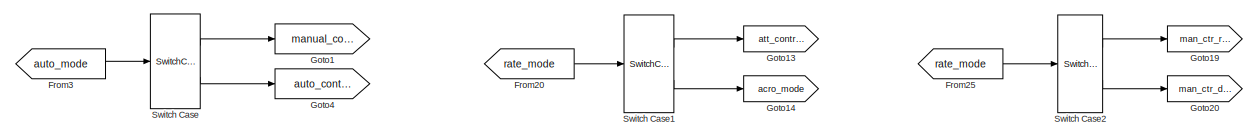
[diagram: root canvas - part 1/3, top center region]
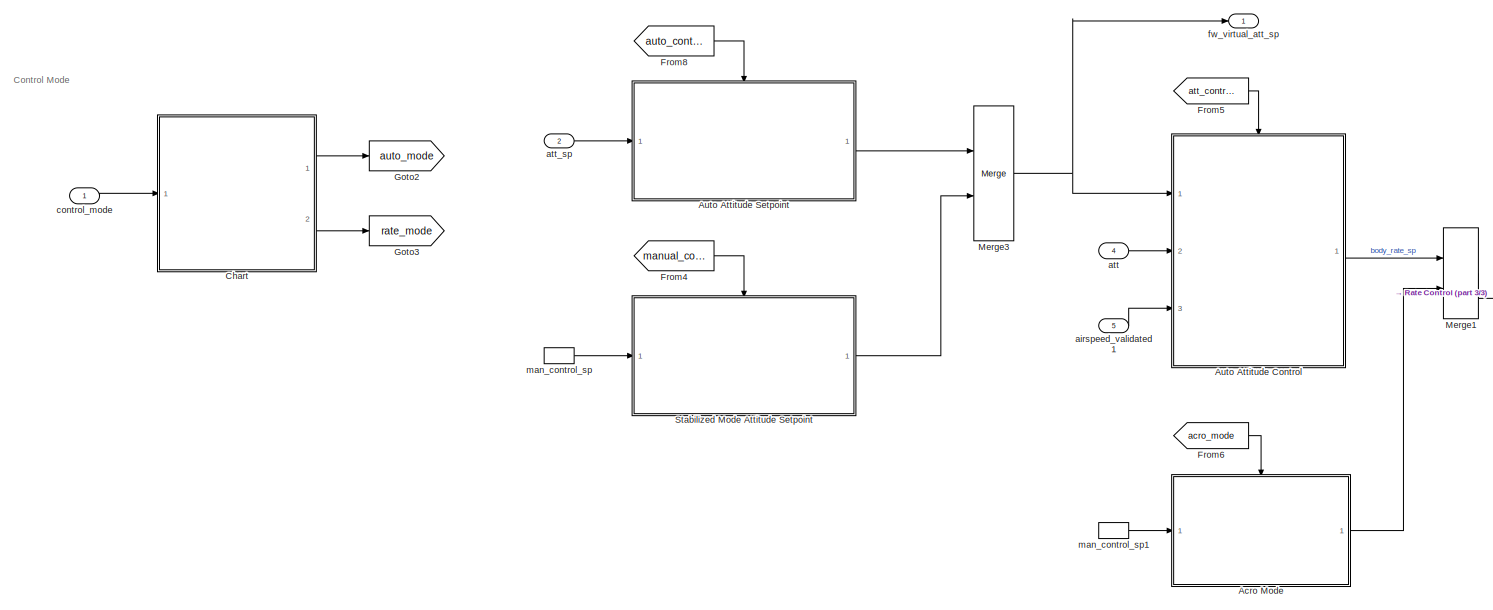
[diagram: root canvas - part 2/3, middle left region]
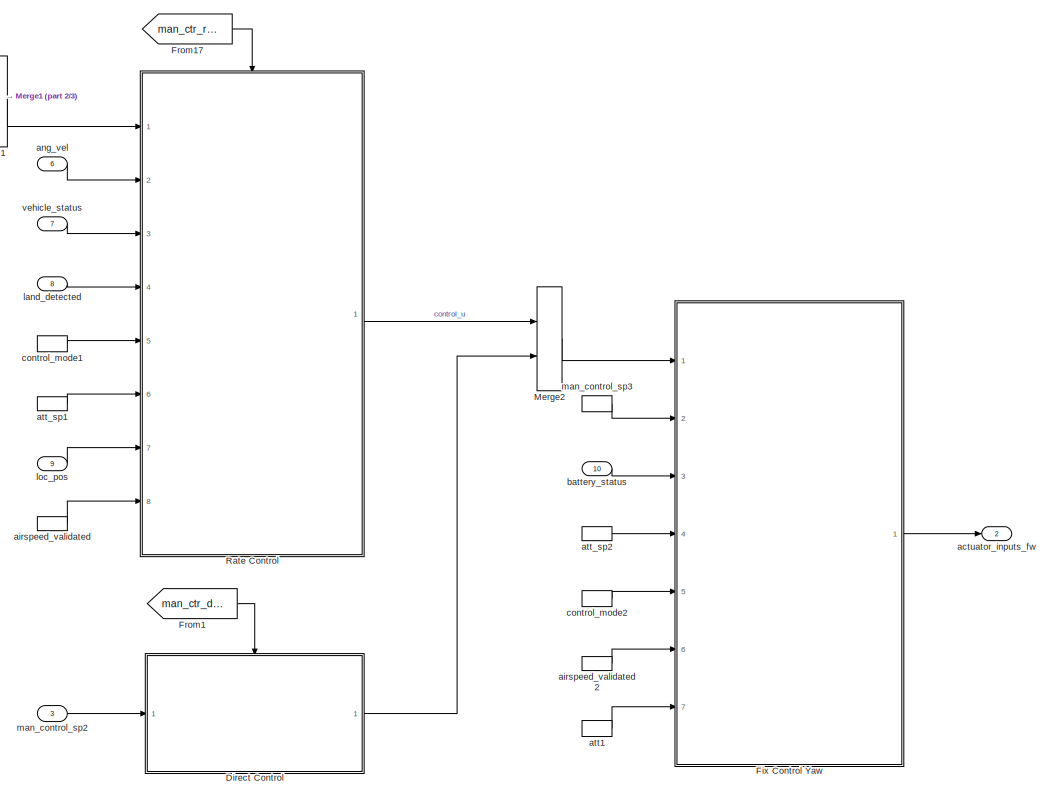
[diagram: root canvas - part 3/3, middle right region]
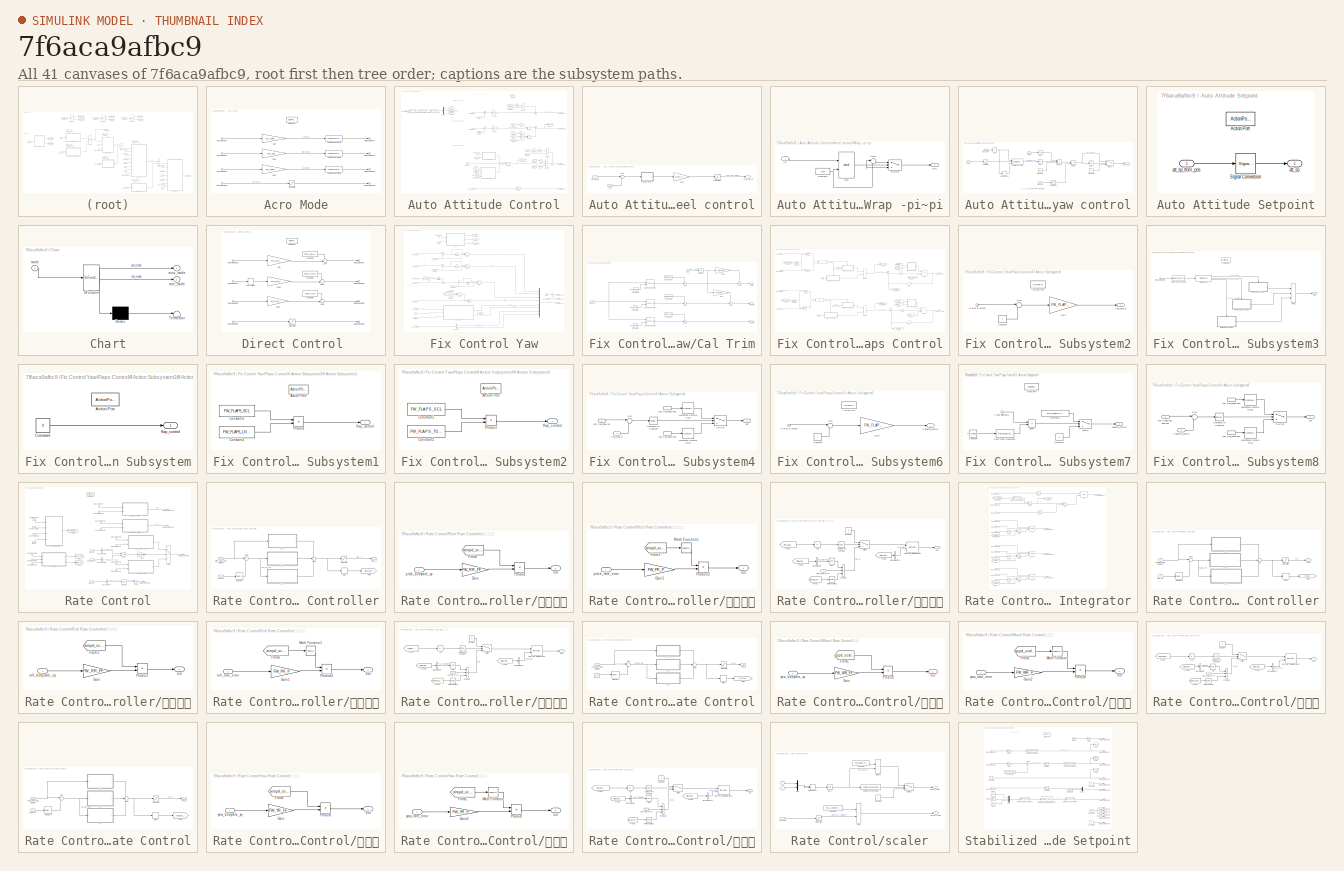
[diagram: thumbnail index - all 41 canvases of the model, root first then tree order]
MODEL slx_7f6aca9afbc9
KIND model
CONFIG AbsTol = auto
CONFIG EnableMultiTasking = off
CONFIG FixedStep = auto
CONFIG MaxStep = auto
CONFIG MinStep = auto
CONFIG RelTol = 1e-3
CONFIG SampleTimeConstraint = Unconstrained
CONFIG SolverName = FixedStepAuto
CONFIG StartTime = 0.0
CONFIG StopTime = 10.0
BLOCK [SubSystem] Acro Mode
  Ports = [1, 1, 0, 0, 0, 0, 0, 1]
  RequestExecContextInheritance = off
  TreatAsAtomicUnit = on
BLOCK [ActionPort] Acro Mode/Action Port
  ActionPortLabel = case [ 2 ]:
BLOCK [Reference] Acro Mode/Angle Conversion1  REF=aerolibconvert2/Angle Conversion
  Ports = [1, 1]
  SourceBlock = aerolibconvert2/Angle Conversion
  SourceProductBaseCode = AE
  SourceType = Angle Conversion
BLOCK [Reference] Acro Mode/Angle Conversion4  REF=aerolibconvert2/Angle Conversion
  Ports = [1, 1]
  SourceBlock = aerolibconvert2/Angle Conversion
  SourceProductBaseCode = AE
  SourceType = Angle Conversion
BLOCK [Reference] Acro Mode/Angle Conversion5  REF=aerolibconvert2/Angle Conversion
  Ports = [1, 1]
  SourceBlock = aerolibconvert2/Angle Conversion
  SourceProductBaseCode = AE
  SourceType = Angle Conversion
BLOCK [Gain] Acro Mode/Gain
  Gain = FW_ACRO_X_MAX
BLOCK [Gain] Acro Mode/Gain1
  Gain = -FW_ACRO_Y_MAX
BLOCK [Gain] Acro Mode/Gain2
  Gain = FW_ACRO_Z_MAX
BLOCK [Inport] Acro Mode/In Bus Element
BLOCK [Inport] Acro Mode/In Bus Element1
BLOCK [Inport] Acro Mode/In Bus Element2
BLOCK [Inport] Acro Mode/In Bus Element3
BLOCK [Outport] Acro Mode/Out Bus Element
BLOCK [Outport] Acro Mode/Out Bus Element1
BLOCK [Outport] Acro Mode/Out Bus Element3
BLOCK [Outport] Acro Mode/Out Bus Element4
BLOCK [Saturate] Acro Mode/Saturation
  AttributesFormatString = [%<LowerLimit>,%<UpperLimit>]
  LowerLimit = 0
  UpperLimit = 1
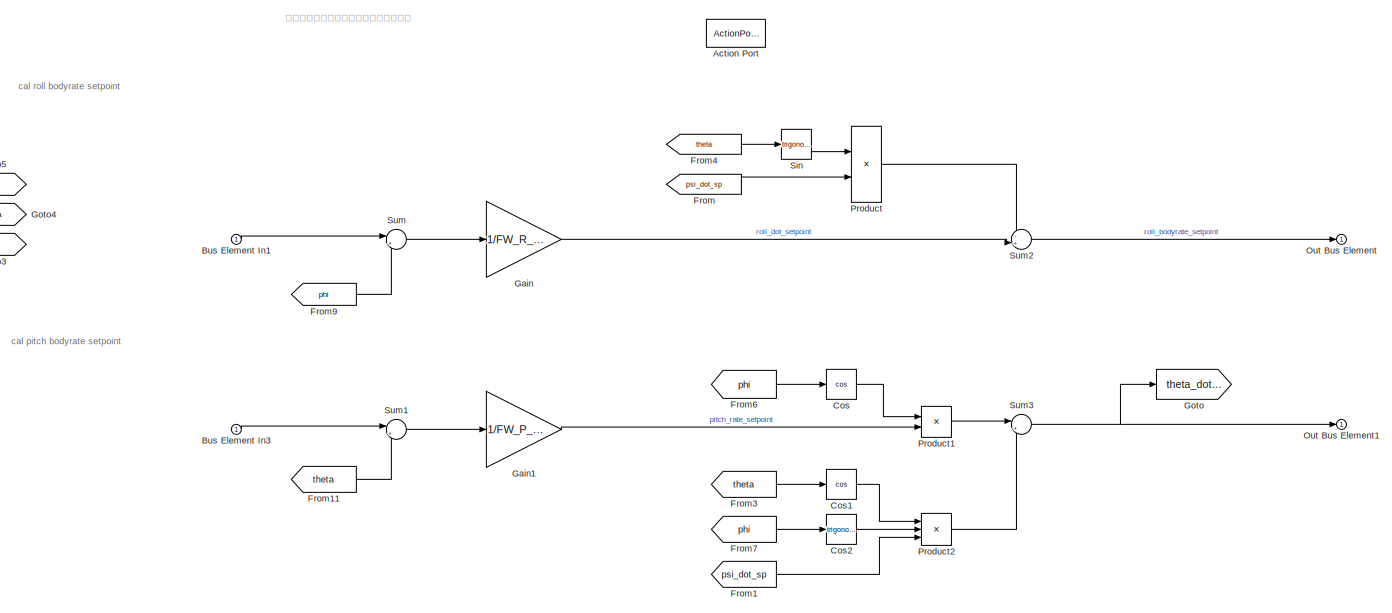
[diagram: Auto Attitude Control - part 1/3, top center region]
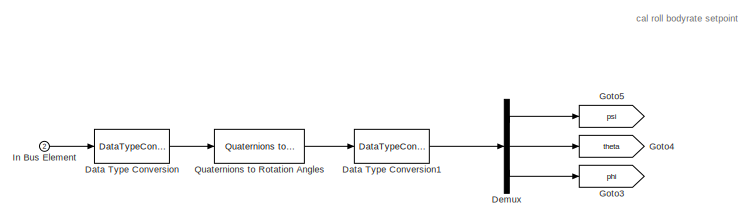
[diagram: Auto Attitude Control - part 2/3, top left region]
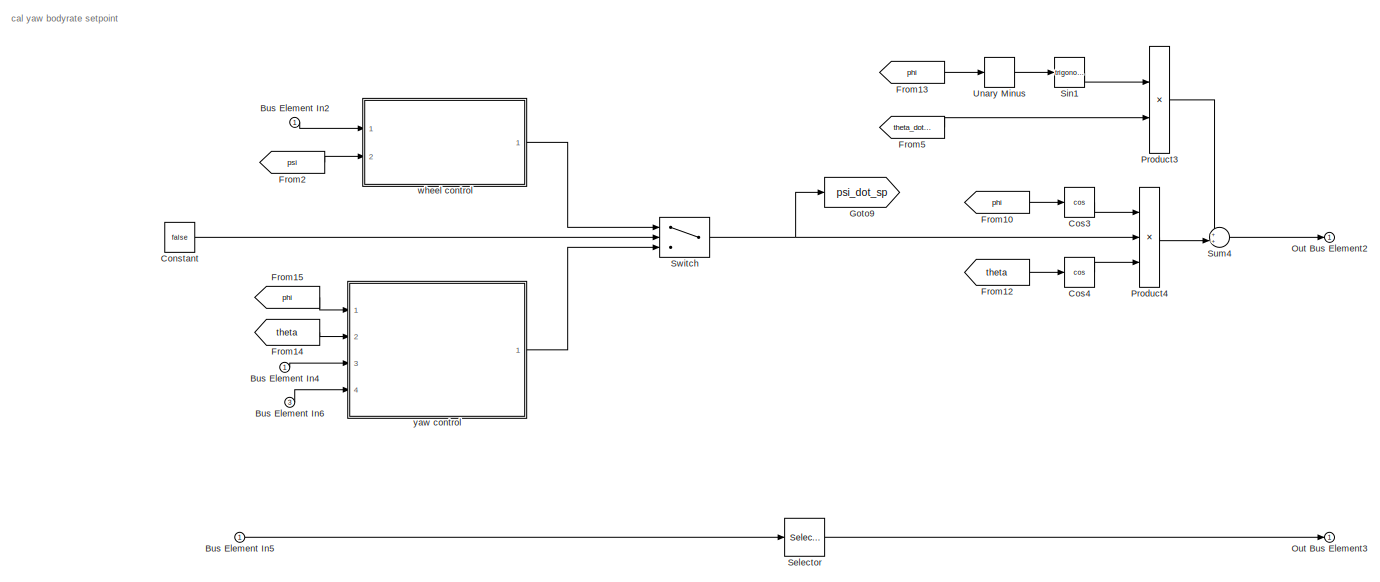
[diagram: Auto Attitude Control - part 3/3, bottom center region]
BLOCK [SubSystem] Auto Attitude Control
  Ports = [3, 1, 0, 0, 0, 0, 0, 1]
  RequestExecContextInheritance = off
BLOCK [ActionPort] Auto Attitude Control/Action Port
  ActionPortLabel = case [ 1 ]:
BLOCK [Inport] Auto Attitude Control/Bus Element In1
BLOCK [Inport] Auto Attitude Control/Bus Element In2
BLOCK [Inport] Auto Attitude Control/Bus Element In3
BLOCK [Inport] Auto Attitude Control/Bus Element In4
BLOCK [Inport] Auto Attitude Control/Bus Element In5
BLOCK [Inport] Auto Attitude Control/Bus Element In6
  Port = 3
BLOCK [Constant] Auto Attitude Control/Constant
  OutDataTypeStr = boolean
  Value = false
BLOCK [Trigonometry] Auto Attitude Control/Cos
  Operator = cos
  Ports = [1, 1]
BLOCK [Trigonometry] Auto Attitude Control/Cos1
  Operator = cos
  Ports = [1, 1]
BLOCK [Trigonometry] Auto Attitude Control/Cos2
  Ports = [1, 1]
BLOCK [Trigonometry] Auto Attitude Control/Cos3
  Operator = cos
  Ports = [1, 1]
BLOCK [Trigonometry] Auto Attitude Control/Cos4
  Operator = cos
  Ports = [1, 1]
BLOCK [DataTypeConversion] Auto Attitude Control/Data Type Conversion
  OutDataTypeStr = double
  RndMeth = Floor
  SaturateOnIntegerOverflow = off
BLOCK [DataTypeConversion] Auto Attitude Control/Data Type Conversion1
  OutDataTypeStr = single
  RndMeth = Floor
  SaturateOnIntegerOverflow = off
BLOCK [Demux] Auto Attitude Control/Demux
  Outputs = 3
  Ports = [1, 3]
BLOCK [From] Auto Attitude Control/From
  GotoTag = psi_dot_sp
BLOCK [From] Auto Attitude Control/From1
  GotoTag = psi_dot_sp
BLOCK [From] Auto Attitude Control/From10
  GotoTag = phi
BLOCK [From] Auto Attitude Control/From11
  GotoTag = theta
BLOCK [From] Auto Attitude Control/From12
  GotoTag = theta
BLOCK [From] Auto Attitude Control/From13
  GotoTag = phi
BLOCK [From] Auto Attitude Control/From14
  GotoTag = theta
BLOCK [From] Auto Attitude Control/From15
  GotoTag = phi
BLOCK [From] Auto Attitude Control/From2
  GotoTag = psi
BLOCK [From] Auto Attitude Control/From3
  GotoTag = theta
BLOCK [From] Auto Attitude Control/From4
  GotoTag = theta
BLOCK [From] Auto Attitude Control/From5
  GotoTag = theta_dot_sp
BLOCK [From] Auto Attitude Control/From6
  GotoTag = phi
BLOCK [From] Auto Attitude Control/From7
  GotoTag = phi
BLOCK [From] Auto Attitude Control/From9
  GotoTag = phi
BLOCK [Gain] Auto Attitude Control/Gain
  Gain = 1/FW_R_TC
BLOCK [Gain] Auto Attitude Control/Gain1
  Gain = 1/FW_P_TC
BLOCK [Goto] Auto Attitude Control/Goto
  GotoTag = theta_dot_sp
BLOCK [Goto] Auto Attitude Control/Goto3
  GotoTag = phi
BLOCK [Goto] Auto Attitude Control/Goto4
  GotoTag = theta
BLOCK [Goto] Auto Attitude Control/Goto5
  GotoTag = psi
BLOCK [Goto] Auto Attitude Control/Goto9
  GotoTag = psi_dot_sp
BLOCK [Inport] Auto Attitude Control/In Bus Element
  Port = 2
BLOCK [Outport] Auto Attitude Control/Out Bus Element
BLOCK [Outport] Auto Attitude Control/Out Bus Element1
BLOCK [Outport] Auto Attitude Control/Out Bus Element2
BLOCK [Outport] Auto Attitude Control/Out Bus Element3
BLOCK [Product] Auto Attitude Control/Product
  Ports = [2, 1]
BLOCK [Product] Auto Attitude Control/Product1
  Ports = [2, 1]
BLOCK [Product] Auto Attitude Control/Product2
  Inputs = 3
  Ports = [3, 1]
BLOCK [Product] Auto Attitude Control/Product3
  Ports = [2, 1]
BLOCK [Product] Auto Attitude Control/Product4
  Inputs = 3
  Ports = [3, 1]
BLOCK [Reference] Auto Attitude Control/Quaternions to Rotation Angles  REF=sharedtransform/Quaternions to Rotation Angles
  AttributesFormatString = Rotation Order: %<rotationOrder>
  Ports = [1, 1]
  SourceBlock = sharedtransform/Quaternions to Rotation Angles
  SourceProductBaseCode = AE,PW,DR,MT,UV,VE
  SourceType = Quat2Ang
BLOCK [Selector] Auto Attitude Control/Selector
  IndexOptions = Index vector (dialog)
  Indices = [1]
  InputPortWidth = 3
  OutputSizes = 1
  Ports = [1, 1]
BLOCK [Trigonometry] Auto Attitude Control/Sin
  Ports = [1, 1]
BLOCK [Trigonometry] Auto Attitude Control/Sin1
  Ports = [1, 1]
BLOCK [Sum] Auto Attitude Control/Sum
  Inputs = |+-
  Ports = [2, 1]
BLOCK [Sum] Auto Attitude Control/Sum1
  Inputs = |+-
  Ports = [2, 1]
BLOCK [Sum] Auto Attitude Control/Sum2
  Inputs = -+|
  Ports = [2, 1]
BLOCK [Sum] Auto Attitude Control/Sum3
  Inputs = |++
  Ports = [2, 1]
BLOCK [Sum] Auto Attitude Control/Sum4
  Inputs = ++|
  Ports = [2, 1]
BLOCK [Switch] Auto Attitude Control/Switch
  Criteria = u2 > Threshold
  InputSameDT = off
  SaturateOnIntegerOverflow = off
BLOCK [UnaryMinus] Auto Attitude Control/Unary Minus
BLOCK [SubSystem] Auto Attitude Control/wheel control
  Ports = [2, 1]
  RequestExecContextInheritance = off
  TreatAsAtomicUnit = on
BLOCK [Saturate] Auto Attitude Control/wheel control/Saturation1
  AttributesFormatString = [%<LowerLimit>,%<UpperLimit>]
  LowerLimit = -FW_W_RMAX
  UpperLimit = FW_W_RMAX
BLOCK [Sum] Auto Attitude Control/wheel control/Sum
  Inputs = |+-
  Ports = [2, 1]
BLOCK [SubSystem] Auto Attitude Control/wheel control/Wrap -pi~pi
  Ports = [1, 1]
  RequestExecContextInheritance = off
BLOCK [Constant] Auto Attitude Control/wheel control/Wrap -pi~pi/Constant1
  OutDataTypeStr = single
  Value = 2*pi
BLOCK [Inport] Auto Attitude Control/wheel control/Wrap -pi~pi/In1
BLOCK [Math] Auto Attitude Control/wheel control/Wrap -pi~pi/Mod
  Operator = mod
  Ports = [2, 1]
BLOCK [Outport] Auto Attitude Control/wheel control/Wrap -pi~pi/Out1
BLOCK [Sum] Auto Attitude Control/wheel control/Wrap -pi~pi/Sum1
  Inputs = |+-
  Ports = [2, 1]
BLOCK [Switch] Auto Attitude Control/wheel control/Wrap -pi~pi/Switch
  Criteria = u2 > Threshold
  InputSameDT = off
  SaturateOnIntegerOverflow = off
  Threshold = pi
BLOCK [Inport] Auto Attitude Control/wheel control/att_yaw_sp
BLOCK [Gain] Auto Attitude Control/wheel control/gain
  Gain = 1/FW_Y_TC
BLOCK [Inport] Auto Attitude Control/wheel control/psi
  Port = 2
BLOCK [Outport] Auto Attitude Control/wheel control/yaw_rate_sp
BLOCK [SubSystem] Auto Attitude Control/yaw control
  Ports = [4, 1]
  RequestExecContextInheritance = off
  TreatAsAtomicUnit = on
BLOCK [Abs] Auto Attitude Control/yaw control/Abs
  SaturateOnIntegerOverflow = off
BLOCK [Constant] Auto Attitude Control/yaw control/Constant
  Value = 9.8
BLOCK [Constant] Auto Attitude Control/yaw control/Constant2
  OutDataTypeStr = single
  Value = 0
BLOCK [Trigonometry] Auto Attitude Control/yaw control/Cos
  Operator = cos
  Ports = [1, 1]
BLOCK [Product] Auto Attitude Control/yaw control/Divide
  Inputs = */
  Ports = [2, 1]
BLOCK [RelationalOperator] Auto Attitude Control/yaw control/IsInf
  InputSameDT = off
  Operator = isFinite
  OutDataTypeStr = boolean
  Ports = [1, 1]
  RndMeth = Simplest
BLOCK [Product] Auto Attitude Control/yaw control/Product
  Inputs = 3
  Ports = [3, 1]
BLOCK [Saturate] Auto Attitude Control/yaw control/Saturation
  AttributesFormatString = [%<LowerLimit>,%<UpperLimit>]
  LowerLimit = -80*pi/180
  UpperLimit = 80*pi/180
BLOCK [Reference] Auto Attitude Control/yaw control/Saturation Dynamic  REF=simulink/Discontinuities/Saturation
Dynamic
  Ports = [3, 1]
  SourceBlock = simulink/Discontinuities/Saturation\nDynamic
  SourceProductBaseCode = SL
  SourceType = Saturation Dynamic
BLOCK [Saturate] Auto Attitude Control/yaw control/Saturation1
  AttributesFormatString = [%<LowerLimit>,%<UpperLimit>]
  LowerLimit = FW_AIRSPD_STALL
  UpperLimit = inf
BLOCK [Switch] Auto Attitude Control/yaw control/Switch1
  Criteria = u2 > Threshold
  InputSameDT = off
  SaturateOnIntegerOverflow = off
BLOCK [Trigonometry] Auto Attitude Control/yaw control/Tan
  Operator = tan
  Ports = [1, 1]
BLOCK [UnaryMinus] Auto Attitude Control/yaw control/Unary Minus1
BLOCK [Inport] Auto Attitude Control/yaw control/airspeed
  Port = 4
BLOCK [Inport] Auto Attitude Control/yaw control/att_sp_roll
  Port = 3
BLOCK [Inport] Auto Attitude Control/yaw control/phi
BLOCK [Outport] Auto Attitude Control/yaw control/psi_dot_sp
BLOCK [Inport] Auto Attitude Control/yaw control/theta
  Port = 2
BLOCK [SubSystem] Auto Attitude Setpoint
  Ports = [1, 1, 0, 0, 0, 0, 0, 1]
  RequestExecContextInheritance = off
BLOCK [ActionPort] Auto Attitude Setpoint/Action Port
  ActionPortLabel = case [ 2 ]:
BLOCK [SignalConversion] Auto Attitude Setpoint/Signal Conversion
  ConversionOutput = Virtual bus
  OverrideOpt = off
BLOCK [Outport] Auto Attitude Setpoint/att_sp
BLOCK [Inport] Auto Attitude Setpoint/att_sp_from_pos
BLOCK [SubSystem] Chart
  ErrorFcn = Stateflow.Translate.translate
  PermitHierarchicalResolution = ExplicitOnly
  Ports = [1, 2]
  RequestExecContextInheritance = off
  SFBlockType = Chart
  TreatAsAtomicUnit = on
BLOCK [Demux] Chart/ Demux 
  Outputs = 1
  Ports = [1, 1]
BLOCK [S-Function] Chart/ SFunction 
  EnableBusSupport = on
  FunctionName = sf_sfun
  PortCounts = [1 3]
  Ports = [1, 3]
  SFcnIsStateOwnerBlock = off
  SFunctionDeploymentMode = off
  Tag = Stateflow S-Function 3
BLOCK [Terminator] Chart/ Terminator 
BLOCK [Outport] Chart/auto_mode
BLOCK [Inport] Chart/mode
BLOCK [Outport] Chart/rate_mode
  Port = 2
BLOCK [SubSystem] Direct Control 
  Ports = [1, 1, 0, 0, 0, 0, 0, 1]
  RequestExecContextInheritance = off
  TreatAsAtomicUnit = on
BLOCK [ActionPort] Direct Control /Action Port
  ActionPortLabel = default:
BLOCK [Constant] Direct Control /Constant1
  Value = TRIM_ROLL
BLOCK [Constant] Direct Control /Constant3
  Value = TRIM_PITCH
BLOCK [Constant] Direct Control /Constant5
  Value = TRIM_YAW
BLOCK [Gain] Direct Control /Gain
  Gain = FW_MAN_R_SC
BLOCK [Gain] Direct Control /Gain1
  Gain = FW_MAN_P_SC
BLOCK [Gain] Direct Control /Gain2
  Gain = FW_MAN_Y_SC
BLOCK [Inport] Direct Control /In Bus Element1
BLOCK [Inport] Direct Control /In Bus Element2
BLOCK [Inport] Direct Control /In Bus Element3
BLOCK [Inport] Direct Control /In Bus Element4
BLOCK [Outport] Direct Control /Out Bus Element
BLOCK [Outport] Direct Control /Out Bus Element1
BLOCK [Outport] Direct Control /Out Bus Element2
BLOCK [Outport] Direct Control /Out Bus Element4
BLOCK [Saturate] Direct Control /Saturation
  AttributesFormatString = [%<LowerLimit>,%<UpperLimit>]
  LowerLimit = 0
  UpperLimit = 1
BLOCK [Sum] Direct Control /Sum
  Inputs = ++|
  Ports = [2, 1]
BLOCK [Sum] Direct Control /Sum1
  Inputs = ++|
  Ports = [2, 1]
BLOCK [Sum] Direct Control /Sum2
  Inputs = ++|
  Ports = [2, 1]
BLOCK [UnaryMinus] Direct Control /Unary Minus
BLOCK [SubSystem] Fix Control Yaw
  Ports = [7, 1]
  RequestExecContextInheritance = off
BLOCK [BusSelector] Fix Control Yaw/Bus Selector
  OutputSignals = aux1,aux3
  Ports = [1, 2]
BLOCK [SubSystem] Fix Control Yaw/Cal Trim
  Ports = [2, 3]
  RequestExecContextInheritance = off
BLOCK [Lookup_n-D] Fix Control Yaw/Cal Trim/1-D Lookup Table1
  BreakpointsForDimension1 = [FW_AIRSPD_STALL FW_AIRSPD_TRIM FW_AIRSPD_MAX]
  ExtrapMethod = Clip
  InputPortMap = u0,p221
  InternalRulePriority = Speed
  NumberOfTableDimensions = 1
  Ports = [2, 1]
  RndMeth = Simplest
  Table = tanh([-5:5])
  TableSource = Input port
BLOCK [Lookup_n-D] Fix Control Yaw/Cal Trim/1-D Lookup Table2
  BreakpointsForDimension1 = [FW_AIRSPD_STALL FW_AIRSPD_TRIM FW_AIRSPD_MAX]
  ExtrapMethod = Clip
  InputPortMap = u0,p221
  InternalRulePriority = Speed
  NumberOfTableDimensions = 1
  Ports = [2, 1]
  RndMeth = Simplest
  Table = tanh([-5:5])
  TableSource = Input port
BLOCK [Lookup_n-D] Fix Control Yaw/Cal Trim/1-D Lookup Table3
  BreakpointsForDimension1 = [FW_AIRSPD_STALL FW_AIRSPD_TRIM FW_AIRSPD_MAX]
  ExtrapMethod = Clip
  InputPortMap = u0,p221
  InternalRulePriority = Speed
  NumberOfTableDimensions = 1
  Ports = [2, 1]
  RndMeth = Simplest
  Table = tanh([-5:5])
  TableSource = Input port
BLOCK [Constant] Fix Control Yaw/Cal Trim/Constant1
  Value = TRIM_PITCH
BLOCK [Constant] Fix Control Yaw/Cal Trim/Constant12
  Value = TRIM_ROLL
BLOCK [Constant] Fix Control Yaw/Cal Trim/Constant2
  AttributesFormatString = %<Value>
  Value = [FW_DTRIM_P_VMIN 0 FW_DTRIM_P_VMAX]
BLOCK [Constant] Fix Control Yaw/Cal Trim/Constant3
  AttributesFormatString = %<Value>
  Value = [FW_DTRIM_R_VMIN 0 FW_DTRIM_R_VMAX]
BLOCK [Constant] Fix Control Yaw/Cal Trim/Constant4
  Value = TRIM_YAW
BLOCK [Constant] Fix Control Yaw/Cal Trim/Constant5
  AttributesFormatString = %<Value>
  Value = [FW_DTRIM_Y_VMIN 0 FW_DTRIM_Y_VMAX]
BLOCK [Gain] Fix Control Yaw/Cal Trim/Gain
  Gain = FW_DTRIM_P_FLPS
BLOCK [Gain] Fix Control Yaw/Cal Trim/Gain1
  Gain = FW_DTRIM_R_FLPS
BLOCK [Sum] Fix Control Yaw/Cal Trim/Sum
  Inputs = ++|
  Ports = [2, 1]
BLOCK [Sum] Fix Control Yaw/Cal Trim/Sum1
  Inputs = ++|
  Ports = [2, 1]
BLOCK [Sum] Fix Control Yaw/Cal Trim/Sum2
  Inputs = ++|
  Ports = [2, 1]
BLOCK [Sum] Fix Control Yaw/Cal Trim/Sum3
  Inputs = ++|
  Ports = [2, 1]
BLOCK [Sum] Fix Control Yaw/Cal Trim/Sum4
  Inputs = ++|
  Ports = [2, 1]
BLOCK [UnitDelay] Fix Control Yaw/Cal Trim/Unit Delay
  HasFrameUpgradeWarning = on
  SampleTime = -1
BLOCK [Inport] Fix Control Yaw/Cal Trim/airspeed
BLOCK [Inport] Fix Control Yaw/Cal Trim/flaps
  Port = 2
BLOCK [Outport] Fix Control Yaw/Cal Trim/pitch_trim
  Port = 2
BLOCK [Outport] Fix Control Yaw/Cal Trim/roll_trim
BLOCK [Outport] Fix Control Yaw/Cal Trim/yaw_trim
  Port = 3
BLOCK [Clock] Fix Control Yaw/Clock
BLOCK [Constant] Fix Control Yaw/Constant
  OutDataTypeStr = boolean
  Value = FW_BAT_SCALE_EN
BLOCK [Constant] Fix Control Yaw/Constant2
  OutDataTypeStr = single
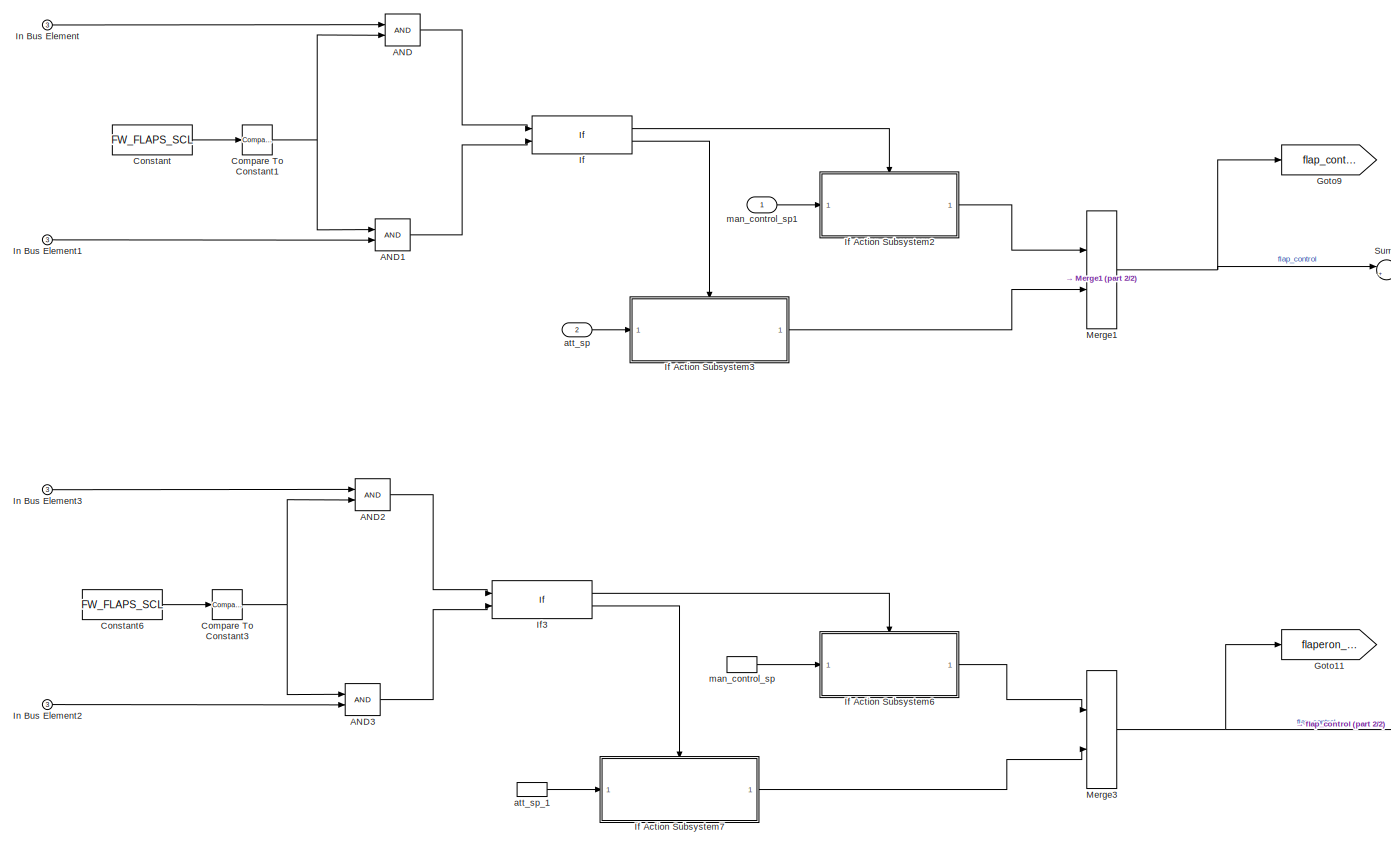
[diagram: Fix Control Yaw/Flaps Control - part 1/2, center side, full height]
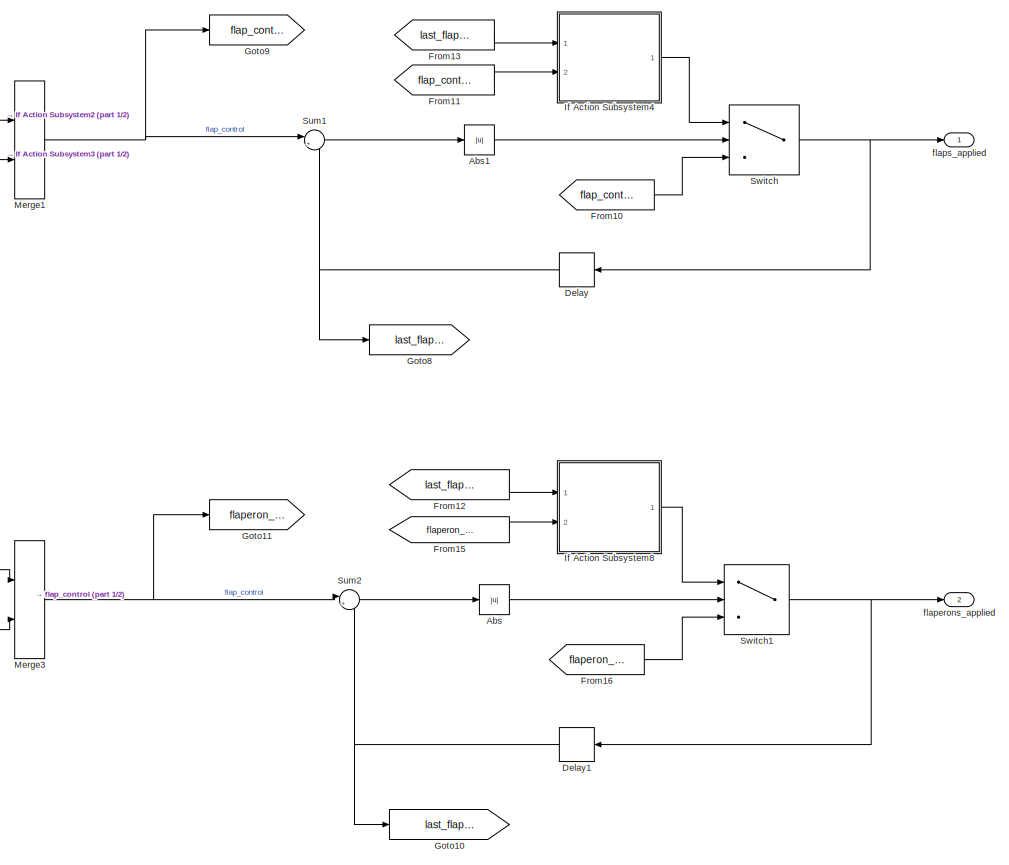
[diagram: Fix Control Yaw/Flaps Control - part 2/2, right side, full height]
BLOCK [SubSystem] Fix Control Yaw/Flaps Control
  Ports = [3, 2]
  RequestExecContextInheritance = off
BLOCK [Logic] Fix Control Yaw/Flaps Control/AND
  AllPortsSameDT = off
  IconShape = distinctive
  OutDataTypeStr = boolean
  Ports = [2, 1]
BLOCK [Logic] Fix Control Yaw/Flaps Control/AND1
  AllPortsSameDT = off
  IconShape = distinctive
  OutDataTypeStr = boolean
  Ports = [2, 1]
BLOCK [Logic] Fix Control Yaw/Flaps Control/AND2
  AllPortsSameDT = off
  IconShape = distinctive
  OutDataTypeStr = boolean
  Ports = [2, 1]
BLOCK [Logic] Fix Control Yaw/Flaps Control/AND3
  AllPortsSameDT = off
  IconShape = distinctive
  OutDataTypeStr = boolean
  Ports = [2, 1]
BLOCK [Abs] Fix Control Yaw/Flaps Control/Abs
  SaturateOnIntegerOverflow = off
BLOCK [Abs] Fix Control Yaw/Flaps Control/Abs1
  SaturateOnIntegerOverflow = off
BLOCK [Reference] Fix Control Yaw/Flaps Control/Compare To Constant1  REF=simulink/Logic and Bit
Operations/Compare
To Constant
  Ports = [1, 1]
  SourceBlock = simulink/Logic and Bit\nOperations/Compare\nTo Constant
  SourceProductBaseCode = SL
  SourceType = Compare To Constant
BLOCK [Reference] Fix Control Yaw/Flaps Control/Compare To Constant3  REF=simulink/Logic and Bit
Operations/Compare
To Constant
  Ports = [1, 1]
  SourceBlock = simulink/Logic and Bit\nOperations/Compare\nTo Constant
  SourceProductBaseCode = SL
  SourceType = Compare To Constant
BLOCK [Constant] Fix Control Yaw/Flaps Control/Constant
  OutDataTypeStr = single
  Value = FW_FLAPS_SCL
BLOCK [Constant] Fix Control Yaw/Flaps Control/Constant6
  Value = FW_FLAPS_SCL
BLOCK [Delay] Fix Control Yaw/Flaps Control/Delay
  DelayLength = 1
  InputPortMap = u0
  NameLocation = top
  Ports = [1, 1]
BLOCK [Delay] Fix Control Yaw/Flaps Control/Delay1
  DelayLength = 1
  InputPortMap = u0
  NameLocation = top
  Ports = [1, 1]
BLOCK [From] Fix Control Yaw/Flaps Control/From10
  GotoTag = flap_control
BLOCK [From] Fix Control Yaw/Flaps Control/From11
  GotoTag = flap_control
BLOCK [From] Fix Control Yaw/Flaps Control/From12
  GotoTag = last_flaperons_applied
BLOCK [From] Fix Control Yaw/Flaps Control/From13
  GotoTag = last_flap_applied
BLOCK [From] Fix Control Yaw/Flaps Control/From15
  GotoTag = flaperon_control
BLOCK [From] Fix Control Yaw/Flaps Control/From16
  GotoTag = flaperon_control
BLOCK [Goto] Fix Control Yaw/Flaps Control/Goto10
  GotoTag = last_flaperons_applied
BLOCK [Goto] Fix Control Yaw/Flaps Control/Goto11
  GotoTag = flaperon_control
BLOCK [Goto] Fix Control Yaw/Flaps Control/Goto8
  GotoTag = last_flap_applied
BLOCK [Goto] Fix Control Yaw/Flaps Control/Goto9
  GotoTag = flap_control
BLOCK [If] Fix Control Yaw/Flaps Control/If
  ElseIfExpressions = u2
  IfExpression = u1
  NumInputs = 2
  Ports = [2, 2]
  ShowElse = off
BLOCK [SubSystem] Fix Control Yaw/Flaps Control/If Action Subsystem2
  Ports = [1, 1, 0, 0, 0, 0, 0, 1]
  RequestExecContextInheritance = off
  TreatAsAtomicUnit = on
BLOCK [ActionPort] Fix Control Yaw/Flaps Control/If Action Subsystem2/Action Port
  ActionPortLabel = if(u1)
BLOCK [Constant] Fix Control Yaw/Flaps Control/If Action Subsystem2/Constant
  OutDataTypeStr = single
BLOCK [Gain] Fix Control Yaw/Flaps Control/If Action Subsystem2/Gain
  Gain = FW_FLAPS_SCL/2
BLOCK [Inport] Fix Control Yaw/Flaps Control/If Action Subsystem2/In Bus Element
BLOCK [Sum] Fix Control Yaw/Flaps Control/If Action Subsystem2/Sum
  Inputs = |++
  Ports = [2, 1]
BLOCK [Outport] Fix Control Yaw/Flaps Control/If Action Subsystem2/flap_control
BLOCK [SubSystem] Fix Control Yaw/Flaps Control/If Action Subsystem3
  Ports = [1, 1, 0, 0, 0, 0, 0, 1]
  RequestExecContextInheritance = off
  TreatAsAtomicUnit = on
BLOCK [ActionPort] Fix Control Yaw/Flaps Control/If Action Subsystem3/Action Port
  ActionPortLabel = elseif(u2)
BLOCK [DataTypeConversion] Fix Control Yaw/Flaps Control/If Action Subsystem3/Data Type Conversion
  RndMeth = Floor
  SaturateOnIntegerOverflow = off
BLOCK [SubSystem] Fix Control Yaw/Flaps Control/If Action Subsystem3/If Action Subsystem
  Ports = [0, 1, 0, 0, 0, 0, 0, 1]
  RequestExecContextInheritance = off
  TreatAsAtomicUnit = on
BLOCK [ActionPort] Fix Control Yaw/Flaps Control/If Action Subsystem3/If Action Subsystem/Action Port
  ActionPortLabel = case [ 0 ]:
BLOCK [Constant] Fix Control Yaw/Flaps Control/If Action Subsystem3/If Action Subsystem/Constant
  OutDataTypeStr = single
  Value = 0
BLOCK [Outport] Fix Control Yaw/Flaps Control/If Action Subsystem3/If Action Subsystem/flap_control
BLOCK [SubSystem] Fix Control Yaw/Flaps Control/If Action Subsystem3/If Action Subsystem1
  Ports = [0, 1, 0, 0, 0, 0, 0, 1]
  RequestExecContextInheritance = off
  TreatAsAtomicUnit = on
BLOCK [ActionPort] Fix Control Yaw/Flaps Control/If Action Subsystem3/If Action Subsystem1/Action Port
  ActionPortLabel = case [ 1 ]:
BLOCK [Constant] Fix Control Yaw/Flaps Control/If Action Subsystem3/If Action Subsystem1/Constant1
  OutDataTypeStr = single
  Value = FW_FLAPS_SCL
BLOCK [Constant] Fix Control Yaw/Flaps Control/If Action Subsystem3/If Action Subsystem1/Constant2
  OutDataTypeStr = single
  Value = FW_FLAPS_LND_SCL
BLOCK [Product] Fix Control Yaw/Flaps Control/If Action Subsystem3/If Action Subsystem1/Product
  Ports = [2, 1]
BLOCK [Outport] Fix Control Yaw/Flaps Control/If Action Subsystem3/If Action Subsystem1/flap_control
BLOCK [SubSystem] Fix Control Yaw/Flaps Control/If Action Subsystem3/If Action Subsystem2
  Ports = [0, 1, 0, 0, 0, 0, 0, 1]
  RequestExecContextInheritance = off
  TreatAsAtomicUnit = on
BLOCK [ActionPort] Fix Control Yaw/Flaps Control/If Action Subsystem3/If Action Subsystem2/Action Port
  ActionPortLabel = case [ 2 ]:
BLOCK [Constant] Fix Control Yaw/Flaps Control/If Action Subsystem3/If Action Subsystem2/Constant1
  OutDataTypeStr = single
  Value = FW_FLAPS_SCL
BLOCK [Constant] Fix Control Yaw/Flaps Control/If Action Subsystem3/If Action Subsystem2/Constant2
  OutDataTypeStr = single
  Value = FW_FLAPS_TO_SCL
BLOCK [Product] Fix Control Yaw/Flaps Control/If Action Subsystem3/If Action Subsystem2/Product
  Ports = [2, 1]
BLOCK [Outport] Fix Control Yaw/Flaps Control/If Action Subsystem3/If Action Subsystem2/flap_control
BLOCK [Inport] Fix Control Yaw/Flaps Control/If Action Subsystem3/In Bus Element1
BLOCK [Merge] Fix Control Yaw/Flaps Control/If Action Subsystem3/Merge
  Inputs = 3
  Ports = [3, 1]
BLOCK [SwitchCase] Fix Control Yaw/Flaps Control/If Action Subsystem3/Switch Case
  CaseConditions = {0,1,2}
  Ports = [1, 3]
  ShowDefaultCase = off
BLOCK [Outport] Fix Control Yaw/Flaps Control/If Action Subsystem3/out
BLOCK [SubSystem] Fix Control Yaw/Flaps Control/If Action Subsystem4
  Ports = [2, 1]
  RequestExecContextInheritance = off
  TreatAsAtomicUnit = on
BLOCK [Reference] Fix Control Yaw/Flaps Control/If Action Subsystem4/Compare To Constant  REF=simulink/Logic and Bit
Operations/Compare
To Constant
  Ports = [1, 1]
  SourceBlock = simulink/Logic and Bit\nOperations/Compare\nTo Constant
  SourceProductBaseCode = SL
  SourceType = Compare To Constant
BLOCK [Sum] Fix Control Yaw/Flaps Control/If Action Subsystem4/Sum
  Inputs = |+-
  Ports = [2, 1]
BLOCK [Switch] Fix Control Yaw/Flaps Control/If Action Subsystem4/Switch
  Criteria = u2 > Threshold
  InputSameDT = off
  SaturateOnIntegerOverflow = off
BLOCK [SampleTimeMath] Fix Control Yaw/Flaps Control/If Action Subsystem4/Weighted Sample Time
BLOCK [SampleTimeMath] Fix Control Yaw/Flaps Control/If Action Subsystem4/Weighted Sample Time1
  TsampMathOp = -
BLOCK [Inport] Fix Control Yaw/Flaps Control/If Action Subsystem4/flap_control
BLOCK [Inport] Fix Control Yaw/Flaps Control/If Action Subsystem4/last_flap_applied
  Port = 2
BLOCK [InportShadow] Fix Control Yaw/Flaps Control/If Action Subsystem4/last_flap_applied1
  Port = 2
BLOCK [InportShadow] Fix Control Yaw/Flaps Control/If Action Subsystem4/last_flap_applied2
  Port = 2
BLOCK [Outport] Fix Control Yaw/Flaps Control/If Action Subsystem4/out
BLOCK [SubSystem] Fix Control Yaw/Flaps Control/If Action Subsystem6
  Ports = [1, 1, 0, 0, 0, 0, 0, 1]
  RequestExecContextInheritance = off
  TreatAsAtomicUnit = on
BLOCK [ActionPort] Fix Control Yaw/Flaps Control/If Action Subsystem6/Action Port
  ActionPortLabel = if(u1)
BLOCK [Constant] Fix Control Yaw/Flaps Control/If Action Subsystem6/Constant
  OutDataTypeStr = single
BLOCK [Gain] Fix Control Yaw/Flaps Control/If Action Subsystem6/Gain
  Gain = FW_FLAPERON_SCL/2
BLOCK [Inport] Fix Control Yaw/Flaps Control/If Action Subsystem6/In Bus Element
BLOCK [Sum] Fix Control Yaw/Flaps Control/If Action Subsystem6/Sum
  Inputs = |++
  Ports = [2, 1]
BLOCK [Outport] Fix Control Yaw/Flaps Control/If Action Subsystem6/flaperon_control
BLOCK [SubSystem] Fix Control Yaw/Flaps Control/If Action Subsystem7
  Ports = [1, 1, 0, 0, 0, 0, 0, 1]
  RequestExecContextInheritance = off
  TreatAsAtomicUnit = on
BLOCK [ActionPort] Fix Control Yaw/Flaps Control/If Action Subsystem7/Action Port
  ActionPortLabel = elseif(u2)
BLOCK [Constant] Fix Control Yaw/Flaps Control/If Action Subsystem7/Constant
  AttributesFormatString = %<Value>
  Value = PX4_VEHICLE_ATTITUDE_SETPOINT.FLAPS_LAND
BLOCK [Constant] Fix Control Yaw/Flaps Control/If Action Subsystem7/Constant1
  Value = FW_FLAPERON_SCL
  VectorParams1D = off
BLOCK [Constant] Fix Control Yaw/Flaps Control/If Action Subsystem7/Constant2
  OutDataTypeStr = single
  Value = 0
BLOCK [DataTypeConversion] Fix Control Yaw/Flaps Control/If Action Subsystem7/Data Type Conversion
  OutDataTypeStr = uint8
  RndMeth = Floor
  SaturateOnIntegerOverflow = off
BLOCK [RelationalOperator] Fix Control Yaw/Flaps Control/If Action Subsystem7/Equal
  InputSameDT = off
  Operator = ==
  OutDataTypeStr = boolean
  Ports = [2, 1]
  RndMeth = Simplest
BLOCK [Inport] Fix Control Yaw/Flaps Control/If Action Subsystem7/In Bus Element1
BLOCK [Switch] Fix Control Yaw/Flaps Control/If Action Subsystem7/Switch
  Criteria = u2 > Threshold
  InputSameDT = off
  SaturateOnIntegerOverflow = off
BLOCK [Outport] Fix Control Yaw/Flaps Control/If Action Subsystem7/flaperon_control
BLOCK [SubSystem] Fix Control Yaw/Flaps Control/If Action Subsystem8
  Ports = [2, 1]
  RequestExecContextInheritance = off
  TreatAsAtomicUnit = on
BLOCK [Reference] Fix Control Yaw/Flaps Control/If Action Subsystem8/Compare To Constant  REF=simulink/Logic and Bit
Operations/Compare
To Constant
  Ports = [1, 1]
  SourceBlock = simulink/Logic and Bit\nOperations/Compare\nTo Constant
  SourceProductBaseCode = SL
  SourceType = Compare To Constant
BLOCK [Sum] Fix Control Yaw/Flaps Control/If Action Subsystem8/Sum
  Inputs = |+-
  Ports = [2, 1]
BLOCK [Switch] Fix Control Yaw/Flaps Control/If Action Subsystem8/Switch
  Criteria = u2 > Threshold
  InputSameDT = off
  SaturateOnIntegerOverflow = off
BLOCK [SampleTimeMath] Fix Control Yaw/Flaps Control/If Action Subsystem8/Weighted Sample Time
  TsampMathOp = -
BLOCK [SampleTimeMath] Fix Control Yaw/Flaps Control/If Action Subsystem8/Weighted Sample Time1
BLOCK [Inport] Fix Control Yaw/Flaps Control/If Action Subsystem8/flaperon_control
BLOCK [InportShadow] Fix Control Yaw/Flaps Control/If Action Subsystem8/last_flap_applied1
  Port = 2
BLOCK [InportShadow] Fix Control Yaw/Flaps Control/If Action Subsystem8/last_flap_applied3
  Port = 2
BLOCK [Inport] Fix Control Yaw/Flaps Control/If Action Subsystem8/last_flaperons_applied
  Port = 2
BLOCK [Outport] Fix Control Yaw/Flaps Control/If Action Subsystem8/out
BLOCK [If] Fix Control Yaw/Flaps Control/If3
  ElseIfExpressions = u2
  IfExpression = u1
  NumInputs = 2
  Ports = [2, 2]
  ShowElse = off
BLOCK [Inport] Fix Control Yaw/Flaps Control/In Bus Element
  Port = 3
BLOCK [Inport] Fix Control Yaw/Flaps Control/In Bus Element1
  Port = 3
BLOCK [Inport] Fix Control Yaw/Flaps Control/In Bus Element2
  Port = 3
BLOCK [Inport] Fix Control Yaw/Flaps Control/In Bus Element3
  Port = 3
BLOCK [Merge] Fix Control Yaw/Flaps Control/Merge1
  Ports = [2, 1]
BLOCK [Merge] Fix Control Yaw/Flaps Control/Merge3
  Ports = [2, 1]
BLOCK [Sum] Fix Control Yaw/Flaps Control/Sum1
  Inputs = |+-
  Ports = [2, 1]
BLOCK [Sum] Fix Control Yaw/Flaps Control/Sum2
  Inputs = |+-
  Ports = [2, 1]
BLOCK [Switch] Fix Control Yaw/Flaps Control/Switch
  Criteria = u2 > Threshold
  InputSameDT = off
  SaturateOnIntegerOverflow = off
  Threshold = 0.01
BLOCK [Switch] Fix Control Yaw/Flaps Control/Switch1
  Criteria = u2 > Threshold
  InputSameDT = off
  SaturateOnIntegerOverflow = off
  Threshold = 0.01
BLOCK [Inport] Fix Control Yaw/Flaps Control/att_sp
  OutDataTypeStr = Bus: px4_vehicle_attitude_setpoint
  Port = 2
BLOCK [InportShadow] Fix Control Yaw/Flaps Control/att_sp_1
  OutDataTypeStr = Bus: px4_vehicle_attitude_setpoint
  Port = 2
BLOCK [Outport] Fix Control Yaw/Flaps Control/flaperons_applied
  Port = 2
BLOCK [Outport] Fix Control Yaw/Flaps Control/flaps_applied
BLOCK [InportShadow] Fix Control Yaw/Flaps Control/man_control_sp
  OutDataTypeStr = Bus: px4_manual_control_setpoint
BLOCK [Inport] Fix Control Yaw/Flaps Control/man_control_sp1
  OutDataTypeStr = Bus: px4_manual_control_setpoint
BLOCK [From] Fix Control Yaw/From
  GotoTag = roll_trim
BLOCK [From] Fix Control Yaw/From1
  GotoTag = pitch_trim
BLOCK [From] Fix Control Yaw/From2
  GotoTag = yaw_trim
BLOCK [From] Fix Control Yaw/From3
  GotoTag = flags
BLOCK [Gain] Fix Control Yaw/Gain
  Gain = FW_RLL_TO_YAW_FF
BLOCK [Gain] Fix Control Yaw/Gain1
  AttributesFormatString = %<Gain>
  Gain = 1e+6
  OutDataTypeStr = uint64
BLOCK [Goto] Fix Control Yaw/Goto
  GotoTag = roll_trim
BLOCK [Goto] Fix Control Yaw/Goto1
  GotoTag = pitch_trim
BLOCK [Goto] Fix Control Yaw/Goto2
  GotoTag = yaw_trim
BLOCK [Goto] Fix Control Yaw/Goto3
  GotoTag = flags
BLOCK [Inport] Fix Control Yaw/In Bus Element
BLOCK [Inport] Fix Control Yaw/In Bus Element1
BLOCK [Inport] Fix Control Yaw/In Bus Element11
  Port = 3
BLOCK [Inport] Fix Control Yaw/In Bus Element2
BLOCK [Inport] Fix Control Yaw/In Bus Element3
BLOCK [Inport] Fix Control Yaw/In Bus Element4
BLOCK [Inport] Fix Control Yaw/In Bus Element5
  Port = 6
BLOCK [Inport] Fix Control Yaw/In Bus Element6
  Port = 7
BLOCK [RelationalOperator] Fix Control Yaw/IsFinite
  InputSameDT = off
  Operator = isFinite
  OutDataTypeStr = boolean
  Ports = [1, 1]
  RndMeth = Simplest
BLOCK [RelationalOperator] Fix Control Yaw/IsFinite1
  InputSameDT = off
  Operator = isFinite
  OutDataTypeStr = boolean
  Ports = [1, 1]
  RndMeth = Simplest
BLOCK [RelationalOperator] Fix Control Yaw/IsFinite2
  InputSameDT = off
  Operator = isFinite
  OutDataTypeStr = boolean
  Ports = [1, 1]
  RndMeth = Simplest
BLOCK [Mux] Fix Control Yaw/Mux
  DisplayOption = bar
  Inputs = 8
  Ports = [8, 1]
BLOCK [Outport] Fix Control Yaw/Out Bus Element1
BLOCK [Outport] Fix Control Yaw/Out Bus Element2
BLOCK [Outport] Fix Control Yaw/Out Bus Element3
BLOCK [Product] Fix Control Yaw/Product
  Ports = [2, 1]
BLOCK [Saturate] Fix Control Yaw/Saturation
  AttributesFormatString = [%<LowerLimit>,%<UpperLimit>]
  LowerLimit = -1
  UpperLimit = 1
BLOCK [Sum] Fix Control Yaw/Sum
  Inputs = ++|
  Ports = [2, 1]
BLOCK [Sum] Fix Control Yaw/Sum1
  Inputs = |++
  Ports = [2, 1]
BLOCK [Sum] Fix Control Yaw/Sum2
  Inputs = |++
  Ports = [2, 1]
BLOCK [Sum] Fix Control Yaw/Sum3
  Inputs = |++
  Ports = [2, 1]
BLOCK [Switch] Fix Control Yaw/Switch
  Criteria = u2 ~= 0
  InputSameDT = off
  SaturateOnIntegerOverflow = off
BLOCK [Switch] Fix Control Yaw/Switch1
  Criteria = u2 ~= 0
  InputSameDT = off
  SaturateOnIntegerOverflow = off
BLOCK [Switch] Fix Control Yaw/Switch2
  Criteria = u2 ~= 0
  InputSameDT = off
  SaturateOnIntegerOverflow = off
BLOCK [Switch] Fix Control Yaw/Switch3
  Criteria = u2 > Threshold
  InputSameDT = off
  SaturateOnIntegerOverflow = off
BLOCK [Inport] Fix Control Yaw/att_sp
  Port = 4
BLOCK [Inport] Fix Control Yaw/control_mode
  Port = 5
BLOCK [Inport] Fix Control Yaw/man_control_sp
  Port = 2
BLOCK [InportShadow] Fix Control Yaw/man_control_sp1
  Port = 2
BLOCK [From] From1
  GotoTag = man_ctr_dir
BLOCK [From] From17
  GotoTag = man_ctr_rate
BLOCK [From] From20
  GotoTag = rate_mode
  TagVisibility = global
BLOCK [From] From25
  GotoTag = rate_mode
  TagVisibility = global
BLOCK [From] From3
  GotoTag = auto_mode
  TagVisibility = global
BLOCK [From] From4
  GotoTag = manual_control
BLOCK [From] From5
  GotoTag = att_control
BLOCK [From] From6
  GotoTag = acro_mode
BLOCK [From] From8
  GotoTag = auto_control
BLOCK [Goto] Goto1
  GotoTag = manual_control
BLOCK [Goto] Goto13
  GotoTag = att_control
BLOCK [Goto] Goto14
  GotoTag = acro_mode
BLOCK [Goto] Goto19
  GotoTag = man_ctr_rate
BLOCK [Goto] Goto2
  GotoTag = auto_mode
  TagVisibility = global
BLOCK [Goto] Goto20
  GotoTag = man_ctr_dir
BLOCK [Goto] Goto3
  GotoTag = rate_mode
  TagVisibility = global
BLOCK [Goto] Goto4
  GotoTag = auto_control
BLOCK [Merge] Merge1
  Ports = [2, 1]
BLOCK [Merge] Merge2
  Ports = [2, 1]
BLOCK [Merge] Merge3
  Ports = [2, 1]
BLOCK [SubSystem] Rate Control
  Ports = [8, 1, 0, 0, 0, 0, 0, 1]
  RequestExecContextInheritance = off
BLOCK [Logic] Rate Control/AND
  AllPortsSameDT = off
  IconShape = distinctive
  OutDataTypeStr = boolean
  Ports = [2, 1]
BLOCK [ActionPort] Rate Control/Action Port
  ActionPortLabel = case [ 2 ]:
BLOCK [Inport] Rate Control/Bus Element In
  Port = 8
BLOCK [Inport] Rate Control/Bus Element In1
  Port = 7
BLOCK [Inport] Rate Control/Bus Element In2
  Port = 7
BLOCK [BusSelector] Rate Control/Bus Selector
  OutputSignals = thrust_body
  Ports = [1, 1]
BLOCK [BusSelector] Rate Control/Bus Selector1
  OutputSignals = flag_control_auto_enabled
  Ports = [1, 1]
BLOCK [BusSelector] Rate Control/Bus Selector2
  OutputSignals = fw_control_yaw
  Ports = [1, 1]
BLOCK [Gain] Rate Control/Gain
  Gain = FW_W_EN
BLOCK [Gain] Rate Control/Gain1
BLOCK [Goto] Rate Control/Goto
  GotoTag = airspd_scaler
  TagVisibility = global
BLOCK [Goto] Rate Control/Goto1
  GotoTag = gspd_scaler
  TagVisibility = global
BLOCK [Goto] Rate Control/Goto4
  GotoTag = integrator_flag
  TagVisibility = global
BLOCK [Inport] Rate Control/In Bus Element
BLOCK [Inport] Rate Control/In Bus Element1
BLOCK [Inport] Rate Control/In Bus Element2
BLOCK [Inport] Rate Control/In Bus Element3
BLOCK [Inport] Rate Control/In Bus Element4
  Port = 2
BLOCK [Inport] Rate Control/In Bus Element5
  Port = 2
BLOCK [Inport] Rate Control/In Bus Element6
  Port = 2
BLOCK [Inport] Rate Control/In Bus Element7
  Port = 2
BLOCK [Outport] Rate Control/Out Bus Element1
BLOCK [Outport] Rate Control/Out Bus Element2
BLOCK [Outport] Rate Control/Out Bus Element3
BLOCK [Outport] Rate Control/Out Bus Element4
BLOCK [SubSystem] Rate Control/Pitch Rate Controller
  Ports = [2, 1]
  RequestExecContextInheritance = off
BLOCK [Delay] Rate Control/Pitch Rate Controller/Delay
  DelayLength = 1
  InputPortMap = u0
  Ports = [1, 1]
BLOCK [Goto] Rate Control/Pitch Rate Controller/Goto
  GotoTag = pitch_last_output
  TagVisibility = global
BLOCK [Saturate] Rate Control/Pitch Rate Controller/Saturation
  AttributesFormatString = [%<LowerLimit>,%<UpperLimit>]
  LowerLimit = -1
  UpperLimit = 1
BLOCK [Selector] Rate Control/Pitch Rate Controller/Selector2
  IndexOptions = Index vector (dialog)
  Indices = [2]
  InputPortWidth = 3
  OutputSizes = 1
  Ports = [1, 1]
BLOCK [Sum] Rate Control/Pitch Rate Controller/Sum
  Inputs = +++
  Ports = [3, 1]
BLOCK [Sum] Rate Control/Pitch Rate Controller/Sum1
  Inputs = |+-
  Ports = [2, 1]
BLOCK [Inport] Rate Control/Pitch Rate Controller/ang_vel
  Port = 2
BLOCK [Inport] Rate Control/Pitch Rate Controller/pitch_bodyrate_setpoint
BLOCK [Outport] Rate Control/Pitch Rate Controller/pitch_u
BLOCK [SubSystem] Rate Control/Pitch Rate Controller/前馈控制
  Ports = [1, 1]
  RequestExecContextInheritance = off
BLOCK [From] Rate Control/Pitch Rate Controller/前馈控制/From2
  GotoTag = airspd_scaler
  TagVisibility = global
BLOCK [Gain] Rate Control/Pitch Rate Controller/前馈控制/Gain
  Gain = FW_RR_FF
BLOCK [Product] Rate Control/Pitch Rate Controller/前馈控制/Product
  Ports = [2, 1]
BLOCK [Outport] Rate Control/Pitch Rate Controller/前馈控制/out
BLOCK [Inport] Rate Control/Pitch Rate Controller/前馈控制/pitch_bodyrate_sp
BLOCK [SubSystem] Rate Control/Pitch Rate Controller/比例控制
  Ports = [1, 1]
  RequestExecContextInheritance = off
BLOCK [From] Rate Control/Pitch Rate Controller/比例控制/From2
  GotoTag = airspd_scaler
  TagVisibility = global
BLOCK [Gain] Rate Control/Pitch Rate Controller/比例控制/Gain1
  Gain = FW_PR_P
BLOCK [Math] Rate Control/Pitch Rate Controller/比例控制/Math Function1
  Operator = magnitude^2
  Ports = [1, 1]
BLOCK [Product] Rate Control/Pitch Rate Controller/比例控制/Product2
  Ports = [2, 1]
BLOCK [Outport] Rate Control/Pitch Rate Controller/比例控制/out
BLOCK [Inport] Rate Control/Pitch Rate Controller/比例控制/pitch_rate_error
BLOCK [SubSystem] Rate Control/Pitch Rate Controller/积分控制
  Ports = [1, 1]
  RequestExecContextInheritance = off
BLOCK [Abs] Rate Control/Pitch Rate Controller/积分控制/Abs
  SaturateOnIntegerOverflow = off
BLOCK [BusSelector] Rate Control/Pitch Rate Controller/积分控制/Bus Selector
  OutputSignals = lock_integrator
  Ports = [1, 1]
BLOCK [BusSelector] Rate Control/Pitch Rate Controller/积分控制/Bus Selector1
  OutputSignals = reset_pitch_i
  Ports = [1, 1]
BLOCK [Reference] Rate Control/Pitch Rate Controller/积分控制/Compare To Constant  REF=simulink/Logic and Bit
Operations/Compare
To Constant
  Ports = [1, 1]
  SourceBlock = simulink/Logic and Bit\nOperations/Compare\nTo Constant
  SourceProductBaseCode = SL
  SourceType = Compare To Constant
BLOCK [Constant] Rate Control/Pitch Rate Controller/积分控制/Constant
  OutDataTypeStr = single
  Value = 0
BLOCK [DiscreteIntegrator] Rate Control/Pitch Rate Controller/积分控制/Discrete-Time Integrator
  ExternalReset = level
  ICPrevOutput = DiscIntNeverNeededParam
  ICPrevScaledInput = DiscIntNeverNeededParam
  InitialConditionSetting = Auto
  LimitOutput = on
  LowerSaturationLimit = -FW_PR_IMAX
  Ports = [2, 1]
  SampleTime = -1
  UpperSaturationLimit = FW_PR_IMAX
  gainval = FW_RR_I
BLOCK [From] Rate Control/Pitch Rate Controller/积分控制/From
  GotoTag = pitch_last_output
  TagVisibility = global
BLOCK [From] Rate Control/Pitch Rate Controller/积分控制/From1
  GotoTag = airspd_scaler
  TagVisibility = global
BLOCK [From] Rate Control/Pitch Rate Controller/积分控制/From3
  GotoTag = integrator_flag
  TagVisibility = global
BLOCK [From] Rate Control/Pitch Rate Controller/积分控制/From4
  GotoTag = integrator_flag
  TagVisibility = global
BLOCK [Math] Rate Control/Pitch Rate Controller/积分控制/Math Function1
  Operator = magnitude^2
  Ports = [1, 1]
BLOCK [Logic] Rate Control/Pitch Rate Controller/积分控制/NOT
  AllPortsSameDT = off
  IconShape = distinctive
  Operator = NOT
  OutDataTypeStr = boolean
  Ports = [1, 1]
BLOCK [Product] Rate Control/Pitch Rate Controller/积分控制/Product
  Inputs = 3
  Ports = [3, 1]
BLOCK [Switch] Rate Control/Pitch Rate Controller/积分控制/Switch
  Criteria = u2 > Threshold
  InputSameDT = off
  SaturateOnIntegerOverflow = off
BLOCK [Outport] Rate Control/Pitch Rate Controller/积分控制/out
BLOCK [Inport] Rate Control/Pitch Rate Controller/积分控制/pitch_rate_error
BLOCK [SubSystem] Rate Control/Reset Control Integrator
  Ports = [4, 1]
  RequestExecContextInheritance = off
BLOCK [Logic] Rate Control/Reset Control Integrator/AND
  AllPortsSameDT = off
  IconShape = distinctive
  OutDataTypeStr = boolean
  Ports = [2, 1]
BLOCK [Logic] Rate Control/Reset Control Integrator/AND1
  AllPortsSameDT = off
  IconShape = distinctive
  OutDataTypeStr = boolean
  Ports = [2, 1]
BLOCK [Logic] Rate Control/Reset Control Integrator/AND2
  AllPortsSameDT = off
  IconShape = distinctive
  OutDataTypeStr = boolean
  Ports = [2, 1]
BLOCK [Logic] Rate Control/Reset Control Integrator/AND3
  AllPortsSameDT = off
  IconShape = distinctive
  OutDataTypeStr = boolean
  Ports = [2, 1]
BLOCK [Constant] Rate Control/Reset Control Integrator/Constant3
  AttributesFormatString = %<Value>
  Value = PX4_VEHICLE_STATUS.VEHICLE_TYPE_ROTARY_WING
BLOCK [DataTypeConversion] Rate Control/Reset Control Integrator/Data Type Conversion
  OutDataTypeStr = uint8
  RndMeth = Floor
  SaturateOnIntegerOverflow = off
BLOCK [RelationalOperator] Rate Control/Reset Control Integrator/Equal
  InputSameDT = off
  Operator = ==
  OutDataTypeStr = boolean
  Ports = [2, 1]
  RndMeth = Simplest
BLOCK [From] Rate Control/Reset Control Integrator/From
  GotoTag = is_rotary
BLOCK [From] Rate Control/Reset Control Integrator/From1
  GotoTag = is_rotary
BLOCK [From] Rate Control/Reset Control Integrator/From2
  GotoTag = is_rotary
BLOCK [Goto] Rate Control/Reset Control Integrator/Goto
  GotoTag = is_rotary
BLOCK [Inport] Rate Control/Reset Control Integrator/In Bus Element
BLOCK [Inport] Rate Control/Reset Control Integrator/In Bus Element1
  Port = 2
BLOCK [Inport] Rate Control/Reset Control Integrator/In Bus Element10
  Port = 4
BLOCK [Inport] Rate Control/Reset Control Integrator/In Bus Element15
  Port = 2
BLOCK [Inport] Rate Control/Reset Control Integrator/In Bus Element2
  Port = 2
BLOCK [Inport] Rate Control/Reset Control Integrator/In Bus Element3
  Port = 3
BLOCK [Inport] Rate Control/Reset Control Integrator/In Bus Element4
  Port = 4
BLOCK [Inport] Rate Control/Reset Control Integrator/In Bus Element5
  Port = 3
BLOCK [Inport] Rate Control/Reset Control Integrator/In Bus Element6
  Port = 4
BLOCK [Inport] Rate Control/Reset Control Integrator/In Bus Element7
  Port = 2
BLOCK [Inport] Rate Control/Reset Control Integrator/In Bus Element8
  Port = 2
BLOCK [Inport] Rate Control/Reset Control Integrator/In Bus Element9
  Port = 3
BLOCK [Logic] Rate Control/Reset Control Integrator/NOT
  AllPortsSameDT = off
  IconShape = distinctive
  Operator = NOT
  OutDataTypeStr = boolean
  Ports = [1, 1]
BLOCK [Logic] Rate Control/Reset Control Integrator/NOT1
  AllPortsSameDT = off
  IconShape = distinctive
  Operator = NOT
  OutDataTypeStr = boolean
  Ports = [1, 1]
BLOCK [Logic] Rate Control/Reset Control Integrator/NOT2
  AllPortsSameDT = off
  IconShape = distinctive
  Operator = NOT
  OutDataTypeStr = boolean
  Ports = [1, 1]
BLOCK [Logic] Rate Control/Reset Control Integrator/NOT3
  AllPortsSameDT = off
  IconShape = distinctive
  Operator = NOT
  OutDataTypeStr = boolean
  Ports = [1, 1]
BLOCK [Logic] Rate Control/Reset Control Integrator/NOT4
  AllPortsSameDT = off
  IconShape = distinctive
  Operator = NOT
  OutDataTypeStr = boolean
  Ports = [1, 1]
BLOCK [Logic] Rate Control/Reset Control Integrator/OR
  AllPortsSameDT = off
  IconShape = distinctive
  Operator = OR
  OutDataTypeStr = boolean
  Ports = [2, 1]
BLOCK [Logic] Rate Control/Reset Control Integrator/OR1
  AllPortsSameDT = off
  IconShape = distinctive
  Inputs = 3
  Operator = OR
  OutDataTypeStr = boolean
  Ports = [3, 1]
BLOCK [Logic] Rate Control/Reset Control Integrator/OR2
  AllPortsSameDT = off
  IconShape = distinctive
  Inputs = 3
  Operator = OR
  OutDataTypeStr = boolean
  Ports = [3, 1]
BLOCK [Logic] Rate Control/Reset Control Integrator/OR3
  AllPortsSameDT = off
  IconShape = distinctive
  Inputs = 3
  Operator = OR
  OutDataTypeStr = boolean
  Ports = [3, 1]
BLOCK [Outport] Rate Control/Reset Control Integrator/Out Bus Element
BLOCK [Outport] Rate Control/Reset Control Integrator/Out Bus Element1
BLOCK [Outport] Rate Control/Reset Control Integrator/Out Bus Element2
BLOCK [Outport] Rate Control/Reset Control Integrator/Out Bus Element3
BLOCK [SubSystem] Rate Control/Roll Rate Controller
  Ports = [2, 1]
  RequestExecContextInheritance = off
BLOCK [Delay] Rate Control/Roll Rate Controller/Delay
  DelayLength = 1
  InputPortMap = u0
  Ports = [1, 1]
BLOCK [Goto] Rate Control/Roll Rate Controller/Goto
  GotoTag = roll_last_output
  TagVisibility = global
BLOCK [Saturate] Rate Control/Roll Rate Controller/Saturation
  AttributesFormatString = [%<LowerLimit>,%<UpperLimit>]
  LowerLimit = -1
  UpperLimit = 1
BLOCK [Selector] Rate Control/Roll Rate Controller/Selector1
  IndexOptions = Index vector (dialog)
  Indices = [1]
  InputPortWidth = 3
  OutputSizes = 1
  Ports = [1, 1]
BLOCK [Sum] Rate Control/Roll Rate Controller/Sum
  Inputs = +++
  Ports = [3, 1]
BLOCK [Sum] Rate Control/Roll Rate Controller/Sum1
  Inputs = |+-
  Ports = [2, 1]
BLOCK [Inport] Rate Control/Roll Rate Controller/ang_vel
  Port = 2
BLOCK [Inport] Rate Control/Roll Rate Controller/roll_bodyrate_setpoint
BLOCK [Outport] Rate Control/Roll Rate Controller/roll_u
BLOCK [SubSystem] Rate Control/Roll Rate Controller/前馈控制
  Ports = [1, 1]
  RequestExecContextInheritance = off
BLOCK [From] Rate Control/Roll Rate Controller/前馈控制/From1
  GotoTag = airspd_scaler
  TagVisibility = global
BLOCK [Gain] Rate Control/Roll Rate Controller/前馈控制/Gain
  Gain = FW_RR_FF
BLOCK [Product] Rate Control/Roll Rate Controller/前馈控制/Product
  Ports = [2, 1]
BLOCK [Outport] Rate Control/Roll Rate Controller/前馈控制/out
BLOCK [Inport] Rate Control/Roll Rate Controller/前馈控制/roll_bodyrate_sp
BLOCK [SubSystem] Rate Control/Roll Rate Controller/比例控制
  Ports = [1, 1]
  RequestExecContextInheritance = off
BLOCK [From] Rate Control/Roll Rate Controller/比例控制/From2
  GotoTag = airspd_scaler
  TagVisibility = global
BLOCK [Gain] Rate Control/Roll Rate Controller/比例控制/Gain1
  Gain = FW_PR_P
BLOCK [Math] Rate Control/Roll Rate Controller/比例控制/Math Function1
  Operator = magnitude^2
  Ports = [1, 1]
BLOCK [Product] Rate Control/Roll Rate Controller/比例控制/Product2
  Ports = [2, 1]
BLOCK [Outport] Rate Control/Roll Rate Controller/比例控制/out
BLOCK [Inport] Rate Control/Roll Rate Controller/比例控制/roll_rate_error
BLOCK [SubSystem] Rate Control/Roll Rate Controller/积分控制
  Ports = [1, 1]
  RequestExecContextInheritance = off
BLOCK [Abs] Rate Control/Roll Rate Controller/积分控制/Abs
  SaturateOnIntegerOverflow = off
BLOCK [BusSelector] Rate Control/Roll Rate Controller/积分控制/Bus Selector
  OutputSignals = lock_integrator
  Ports = [1, 1]
BLOCK [BusSelector] Rate Control/Roll Rate Controller/积分控制/Bus Selector1
  OutputSignals = reset_roll_i
  Ports = [1, 1]
BLOCK [Reference] Rate Control/Roll Rate Controller/积分控制/Compare To Constant  REF=simulink/Logic and Bit
Operations/Compare
To Constant
  Ports = [1, 1]
  SourceBlock = simulink/Logic and Bit\nOperations/Compare\nTo Constant
  SourceProductBaseCode = SL
  SourceType = Compare To Constant
BLOCK [Constant] Rate Control/Roll Rate Controller/积分控制/Constant
  OutDataTypeStr = single
  Value = 0
BLOCK [DiscreteIntegrator] Rate Control/Roll Rate Controller/积分控制/Discrete-Time Integrator
  ExternalReset = level
  ICPrevOutput = DiscIntNeverNeededParam
  ICPrevScaledInput = DiscIntNeverNeededParam
  InitialConditionSetting = Auto
  LimitOutput = on
  LowerSaturationLimit = -FW_PR_IMAX
  Ports = [2, 1]
  SampleTime = -1
  UpperSaturationLimit = FW_PR_IMAX
  gainval = FW_RR_I
BLOCK [From] Rate Control/Roll Rate Controller/积分控制/From
  GotoTag = roll_last_output
  TagVisibility = global
BLOCK [From] Rate Control/Roll Rate Controller/积分控制/From1
  GotoTag = airspd_scaler
  TagVisibility = global
BLOCK [From] Rate Control/Roll Rate Controller/积分控制/From2
  GotoTag = integrator_flag
  TagVisibility = global
BLOCK [From] Rate Control/Roll Rate Controller/积分控制/From3
  GotoTag = integrator_flag
  TagVisibility = global
BLOCK [Math] Rate Control/Roll Rate Controller/积分控制/Math Function1
  Operator = magnitude^2
  Ports = [1, 1]
BLOCK [Logic] Rate Control/Roll Rate Controller/积分控制/NOT
  AllPortsSameDT = off
  IconShape = distinctive
  Operator = NOT
  OutDataTypeStr = boolean
  Ports = [1, 1]
BLOCK [Product] Rate Control/Roll Rate Controller/积分控制/Product
  Inputs = 3
  Ports = [3, 1]
BLOCK [Switch] Rate Control/Roll Rate Controller/积分控制/Switch
  Criteria = u2 > Threshold
  InputSameDT = off
  SaturateOnIntegerOverflow = off
BLOCK [Outport] Rate Control/Roll Rate Controller/积分控制/out
BLOCK [Inport] Rate Control/Roll Rate Controller/积分控制/roll_rate_error
BLOCK [Selector] Rate Control/Selector
  IndexOptions = Index vector (dialog)
  Indices = [1]
  InputPortWidth = 3
  OutputSizes = 1
  Ports = [1, 1]
BLOCK [Switch] Rate Control/Switch
  Criteria = u2 > Threshold
  InputSameDT = off
  SaturateOnIntegerOverflow = off
BLOCK [SubSystem] Rate Control/Wheel Rate Control
  Ports = [2, 1]
  RequestExecContextInheritance = off
BLOCK [Delay] Rate Control/Wheel Rate Control/Delay
  DelayLength = 1
  InputPortMap = u0
  Ports = [1, 1]
BLOCK [Goto] Rate Control/Wheel Rate Control/Goto1
  GotoTag = yaw_wheel_output
  TagVisibility = global
BLOCK [Saturate] Rate Control/Wheel Rate Control/Saturation
  AttributesFormatString = [%<LowerLimit>,%<UpperLimit>]
  LowerLimit = -1
  UpperLimit = 1
BLOCK [Selector] Rate Control/Wheel Rate Control/Selector3
  IndexOptions = Index vector (dialog)
  Indices = [3]
  InputPortWidth = 3
  OutputSizes = 1
  Ports = [1, 1]
BLOCK [Sum] Rate Control/Wheel Rate Control/Sum
  Inputs = |+-
  Ports = [2, 1]
BLOCK [Sum] Rate Control/Wheel Rate Control/Sum1
  Inputs = +++
  Ports = [3, 1]
BLOCK [Inport] Rate Control/Wheel Rate Control/ang_vel
  Port = 2
BLOCK [Inport] Rate Control/Wheel Rate Control/yaw_bodyrate_setpoint
BLOCK [Outport] Rate Control/Wheel Rate Control/yaw_u
BLOCK [SubSystem] Rate Control/Wheel Rate Control/前馈项
  Ports = [1, 1]
  RequestExecContextInheritance = off
  ShowPortLabels = FromPortBlockName
BLOCK [From] Rate Control/Wheel Rate Control/前馈项/From1
  GotoTag = gspd_scaler
  TagVisibility = global
BLOCK [Gain] Rate Control/Wheel Rate Control/前馈项/Gain
  Gain = FW_WR_FF
BLOCK [Product] Rate Control/Wheel Rate Control/前馈项/Product
  Ports = [2, 1]
BLOCK [Outport] Rate Control/Wheel Rate Control/前馈项/out
BLOCK [Inport] Rate Control/Wheel Rate Control/前馈项/yaw_bodyrate_sp
BLOCK [SubSystem] Rate Control/Wheel Rate Control/比例项
  Ports = [1, 1]
  RequestExecContextInheritance = off
  ShowPortLabels = FromPortBlockName
BLOCK [From] Rate Control/Wheel Rate Control/比例项/From1
  GotoTag = gspd_scaler
  TagVisibility = global
BLOCK [Gain] Rate Control/Wheel Rate Control/比例项/Gain2
  Gain = FW_WR_P
BLOCK [Math] Rate Control/Wheel Rate Control/比例项/Math Function
  Operator = magnitude^2
  Ports = [1, 1]
BLOCK [Product] Rate Control/Wheel Rate Control/比例项/Product
  Ports = [2, 1]
BLOCK [Outport] Rate Control/Wheel Rate Control/比例项/out
BLOCK [Inport] Rate Control/Wheel Rate Control/比例项/yaw_rate_error
BLOCK [SubSystem] Rate Control/Wheel Rate Control/积分项
  Ports = [1, 1]
  RequestExecContextInheritance = off
  ShowPortLabels = FromPortBlockName
BLOCK [Abs] Rate Control/Wheel Rate Control/积分项/Abs
  SaturateOnIntegerOverflow = off
BLOCK [BusSelector] Rate Control/Wheel Rate Control/积分项/Bus Selector
  OutputSignals = lock_integrator
  Ports = [1, 1]
BLOCK [BusSelector] Rate Control/Wheel Rate Control/积分项/Bus Selector1
  OutputSignals = reset_yaw_i
  Ports = [1, 1]
BLOCK [Reference] Rate Control/Wheel Rate Control/积分项/Compare To Constant  REF=simulink/Logic and Bit
Operations/Compare
To Constant
  Ports = [1, 1]
  SourceBlock = simulink/Logic and Bit\nOperations/Compare\nTo Constant
  SourceProductBaseCode = SL
  SourceType = Compare To Constant
BLOCK [Constant] Rate Control/Wheel Rate Control/积分项/Constant
  Value = 0
BLOCK [DiscreteIntegrator] Rate Control/Wheel Rate Control/积分项/Discrete-Time Integrator1
  ExternalReset = level
  ICPrevOutput = DiscIntNeverNeededParam
  ICPrevScaledInput = DiscIntNeverNeededParam
  InitialConditionSetting = Auto
  LimitOutput = on
  LowerSaturationLimit = -FW_PR_IMAX
  Ports = [2, 1]
  SampleTime = -1
  UpperSaturationLimit = FW_PR_IMAX
  gainval = FW_RR_I
BLOCK [From] Rate Control/Wheel Rate Control/积分项/From1
  GotoTag = gspd_scaler
  TagVisibility = global
BLOCK [From] Rate Control/Wheel Rate Control/积分项/From2
  GotoTag = yaw_wheel_output
  TagVisibility = global
BLOCK [From] Rate Control/Wheel Rate Control/积分项/From3
  GotoTag = integrator_flag
  TagVisibility = global
BLOCK [From] Rate Control/Wheel Rate Control/积分项/From4
  GotoTag = integrator_flag
  TagVisibility = global
BLOCK [Math] Rate Control/Wheel Rate Control/积分项/Math Function2
  Operator = magnitude^2
  Ports = [1, 1]
BLOCK [Logic] Rate Control/Wheel Rate Control/积分项/NOT
  AllPortsSameDT = off
  IconShape = distinctive
  Operator = NOT
  OutDataTypeStr = boolean
  Ports = [1, 1]
BLOCK [Product] Rate Control/Wheel Rate Control/积分项/Product1
  Inputs = 3
  Ports = [3, 1]
BLOCK [Switch] Rate Control/Wheel Rate Control/积分项/Switch
  Criteria = u2 > Threshold
  InputSameDT = off
  SaturateOnIntegerOverflow = off
BLOCK [Outport] Rate Control/Wheel Rate Control/积分项/out
BLOCK [Inport] Rate Control/Wheel Rate Control/积分项/yaw_rate_error
BLOCK [SubSystem] Rate Control/Yaw Rate Control
  Ports = [2, 1]
  RequestExecContextInheritance = off
BLOCK [Delay] Rate Control/Yaw Rate Control/Delay
  DelayLength = 1
  InputPortMap = u0
  Ports = [1, 1]
BLOCK [Goto] Rate Control/Yaw Rate Control/Goto1
  GotoTag = yaw_last_output
  TagVisibility = global
BLOCK [Saturate] Rate Control/Yaw Rate Control/Saturation
  AttributesFormatString = [%<LowerLimit>,%<UpperLimit>]
  LowerLimit = -1
  OutDataTypeStr = single
  UpperLimit = 1
BLOCK [Selector] Rate Control/Yaw Rate Control/Selector4
  IndexOptions = Index vector (dialog)
  Indices = [3]
  InputPortWidth = 3
  OutputSizes = 1
  Ports = [1, 1]
BLOCK [Sum] Rate Control/Yaw Rate Control/Sum
  Inputs = |+-
  Ports = [2, 1]
BLOCK [Sum] Rate Control/Yaw Rate Control/Sum1
  Inputs = +++
  Ports = [3, 1]
BLOCK [Inport] Rate Control/Yaw Rate Control/ang_vel
  Port = 2
BLOCK [Inport] Rate Control/Yaw Rate Control/yaw_bodyrate_setpoint
BLOCK [Outport] Rate Control/Yaw Rate Control/yaw_u
BLOCK [SubSystem] Rate Control/Yaw Rate Control/前馈项
  Ports = [1, 1]
  RequestExecContextInheritance = off
  ShowPortLabels = FromPortBlockName
BLOCK [From] Rate Control/Yaw Rate Control/前馈项/From1
  GotoTag = airspd_scaler
  TagVisibility = global
BLOCK [Gain] Rate Control/Yaw Rate Control/前馈项/Gain
  Gain = FW_YR_FF
BLOCK [Product] Rate Control/Yaw Rate Control/前馈项/Product
  Ports = [2, 1]
BLOCK [Outport] Rate Control/Yaw Rate Control/前馈项/out
BLOCK [Inport] Rate Control/Yaw Rate Control/前馈项/yaw_bodyrate_sp
BLOCK [SubSystem] Rate Control/Yaw Rate Control/比例项
  Ports = [1, 1]
  RequestExecContextInheritance = off
  ShowPortLabels = FromPortBlockName
BLOCK [From] Rate Control/Yaw Rate Control/比例项/From1
  GotoTag = airspd_scaler
  TagVisibility = global
BLOCK [Gain] Rate Control/Yaw Rate Control/比例项/Gain2
  Gain = FW_YR_P
BLOCK [Math] Rate Control/Yaw Rate Control/比例项/Math Function
  Operator = magnitude^2
  Ports = [1, 1]
BLOCK [Product] Rate Control/Yaw Rate Control/比例项/Product
  Ports = [2, 1]
BLOCK [Outport] Rate Control/Yaw Rate Control/比例项/out
BLOCK [Inport] Rate Control/Yaw Rate Control/比例项/yaw_rate_error
BLOCK [SubSystem] Rate Control/Yaw Rate Control/积分项
  Ports = [1, 1]
  RequestExecContextInheritance = off
  ShowPortLabels = FromPortBlockName
BLOCK [Abs] Rate Control/Yaw Rate Control/积分项/Abs
  SaturateOnIntegerOverflow = off
BLOCK [BusSelector] Rate Control/Yaw Rate Control/积分项/Bus Selector
  OutputSignals = lock_integrator
  Ports = [1, 1]
BLOCK [BusSelector] Rate Control/Yaw Rate Control/积分项/Bus Selector1
  OutputSignals = reset_yaw_i
  Ports = [1, 1]
BLOCK [Reference] Rate Control/Yaw Rate Control/积分项/Compare To Constant  REF=simulink/Logic and Bit
Operations/Compare
To Constant
  Ports = [1, 1]
  SourceBlock = simulink/Logic and Bit\nOperations/Compare\nTo Constant
  SourceProductBaseCode = SL
  SourceType = Compare To Constant
BLOCK [Constant] Rate Control/Yaw Rate Control/积分项/Constant
  OutDataTypeStr = single
  Value = 0
BLOCK [DiscreteIntegrator] Rate Control/Yaw Rate Control/积分项/Discrete-Time Integrator1
  ExternalReset = level
  ICPrevOutput = DiscIntNeverNeededParam
  ICPrevScaledInput = DiscIntNeverNeededParam
  InitialConditionSetting = Auto
  LimitOutput = on
  LowerSaturationLimit = -FW_PR_IMAX
  Ports = [2, 1]
  SampleTime = -1
  UpperSaturationLimit = FW_PR_IMAX
  gainval = FW_RR_I
BLOCK [From] Rate Control/Yaw Rate Control/积分项/From1
  GotoTag = airspd_scaler
  TagVisibility = global
BLOCK [From] Rate Control/Yaw Rate Control/积分项/From2
  GotoTag = integrator_flag
  TagVisibility = global
BLOCK [From] Rate Control/Yaw Rate Control/积分项/From3
  GotoTag = integrator_flag
  TagVisibility = global
BLOCK [From] Rate Control/Yaw Rate Control/积分项/From4
  GotoTag = yaw_last_output
  TagVisibility = global
BLOCK [Math] Rate Control/Yaw Rate Control/积分项/Math Function2
  Operator = magnitude^2
  Ports = [1, 1]
BLOCK [Logic] Rate Control/Yaw Rate Control/积分项/NOT
  AllPortsSameDT = off
  IconShape = distinctive
  Operator = NOT
  OutDataTypeStr = boolean
  Ports = [1, 1]
BLOCK [Product] Rate Control/Yaw Rate Control/积分项/Product1
  Inputs = 3
  Ports = [3, 1]
BLOCK [Switch] Rate Control/Yaw Rate Control/积分项/Switch
  Criteria = u2 > Threshold
  InputSameDT = off
  SaturateOnIntegerOverflow = off
BLOCK [Outport] Rate Control/Yaw Rate Control/积分项/out
BLOCK [Inport] Rate Control/Yaw Rate Control/积分项/yaw_rate_error
BLOCK [Inport] Rate Control/att_sp
  Port = 6
BLOCK [InportShadow] Rate Control/att_sp1
  Port = 6
BLOCK [InportShadow] Rate Control/att_sp2
  Port = 6
BLOCK [Inport] Rate Control/control_mode
  OutDataTypeStr = Bus: px4_vehicle_control_mode
  Port = 5
BLOCK [InportShadow] Rate Control/control_mode1
  OutDataTypeStr = Bus: px4_vehicle_control_mode
  Port = 5
BLOCK [Inport] Rate Control/land_detected
  OutDataTypeStr = Bus: px4_vehicle_land_detected
  Port = 4
BLOCK [SubSystem] Rate Control/scaler
  Ports = [3, 2]
  RequestExecContextInheritance = off
  ShowPortLabels = FromPortBlockName
BLOCK [Reference] Rate Control/scaler/Compare To Constant  REF=simulink/Logic and Bit
Operations/Compare
To Constant
  Ports = [1, 1]
  SourceBlock = simulink/Logic and Bit\nOperations/Compare\nTo Constant
  SourceProductBaseCode = SL
  SourceType = Compare To Constant
BLOCK [Constant] Rate Control/scaler/Constant
  Value = FW_AIRSPD_TRIM
BLOCK [Constant] Rate Control/scaler/Constant1
  Value = FW_AIRSPD_STALL
BLOCK [Constant] Rate Control/scaler/Constant2
  OutDataTypeStr = single
BLOCK [Product] Rate Control/scaler/Divide
  Inputs = */
  Ports = [2, 1]
BLOCK [Product] Rate Control/scaler/Divide1
  Inputs = */
  Ports = [2, 1]
BLOCK [DotProduct] Rate Control/scaler/Dot Product
  OutDataTypeStr = Inherit: Inherit via internal rule
BLOCK [Mux] Rate Control/scaler/Mux
  DisplayOption = bar
  Inputs = 2
  Ports = [2, 1]
BLOCK [Saturate] Rate Control/scaler/Saturation
  AttributesFormatString = [%<LowerLimit>,%<UpperLimit>]
  LowerLimit = FW_AIRSPD_STALL
  UpperLimit = FW_AIRSPD_MAX
BLOCK [Sqrt] Rate Control/scaler/Sqrt
BLOCK [Switch] Rate Control/scaler/Switch1
  Criteria = u2 > Threshold
  InputSameDT = off
  SaturateOnIntegerOverflow = off
BLOCK [Outport] Rate Control/scaler/airspd_scaler
  Port = 2
BLOCK [Inport] Rate Control/scaler/cal_aspd
  Port = 3
BLOCK [Outport] Rate Control/scaler/gspd_scaler
BLOCK [Inport] Rate Control/scaler/vx
BLOCK [Inport] Rate Control/scaler/vy
  Port = 2
BLOCK [Inport] Rate Control/vehicle_status
  OutDataTypeStr = Bus: px4_vehicle_status
  Port = 3
BLOCK [SubSystem] Stabilized Mode Attitude Setpoint
  Ports = [1, 1, 0, 0, 0, 0, 0, 1]
  RequestExecContextInheritance = off
  TreatAsAtomicUnit = on
BLOCK [ActionPort] Stabilized Mode Attitude Setpoint/Action Port
  ActionPortLabel = case [ 1 ]:
BLOCK [Reference] Stabilized Mode Attitude Setpoint/Angle Conversion1  REF=aerolibconvert2/Angle Conversion
  Ports = [1, 1]
  SourceBlock = aerolibconvert2/Angle Conversion
  SourceProductBaseCode = AE
  SourceType = Angle Conversion
BLOCK [Reference] Stabilized Mode Attitude Setpoint/Angle Conversion4  REF=aerolibconvert2/Angle Conversion
  Ports = [1, 1]
  SourceBlock = aerolibconvert2/Angle Conversion
  SourceProductBaseCode = AE
  SourceType = Angle Conversion
BLOCK [Clock] Stabilized Mode Attitude Setpoint/Clock
BLOCK [Constant] Stabilized Mode Attitude Setpoint/Constant
  OutDataTypeStr = single
  Value = [0 0]
BLOCK [Constant] Stabilized Mode Attitude Setpoint/Constant1
  OutDataTypeStr = boolean
  Value = false
BLOCK [Constant] Stabilized Mode Attitude Setpoint/Constant2
  Value = FW_PSP_OFF
BLOCK [Constant] Stabilized Mode Attitude Setpoint/Constant3
  OutDataTypeStr = single
  Value = 0
BLOCK [Constant] Stabilized Mode Attitude Setpoint/Constant4
  OutDataTypeStr = uint8
  Value = 0
BLOCK [Constant] Stabilized Mode Attitude Setpoint/Constant5
  OutDataTypeStr = single
  Value = 0
BLOCK [DataTypeConversion] Stabilized Mode Attitude Setpoint/Data Type Conversion
  OutDataTypeStr = single
  RndMeth = Floor
  SaturateOnIntegerOverflow = off
BLOCK [DataTypeConversion] Stabilized Mode Attitude Setpoint/Data Type Conversion1
  OutDataTypeStr = double
  RndMeth = Floor
  SaturateOnIntegerOverflow = off
BLOCK [From] Stabilized Mode Attitude Setpoint/From
  GotoTag = roll
BLOCK [From] Stabilized Mode Attitude Setpoint/From1
  GotoTag = pitch
BLOCK [From] Stabilized Mode Attitude Setpoint/From2
  GotoTag = yaw
BLOCK [Gain] Stabilized Mode Attitude Setpoint/Gain
  AttributesFormatString = %<Gain>
  Gain = 1e+6
  OutDataTypeStr = uint64
BLOCK [Gain] Stabilized Mode Attitude Setpoint/Gain2
  AttributesFormatString = %<Gain>
  Gain = FW_MAN_R_MAX
BLOCK [Gain] Stabilized Mode Attitude Setpoint/Gain3
  AttributesFormatString = %<Gain>
  Gain = -FW_MAN_P_MAX
BLOCK [Goto] Stabilized Mode Attitude Setpoint/Goto
  GotoTag = roll
BLOCK [Goto] Stabilized Mode Attitude Setpoint/Goto1
  GotoTag = pitch
BLOCK [Goto] Stabilized Mode Attitude Setpoint/Goto2
  GotoTag = yaw
BLOCK [Inport] Stabilized Mode Attitude Setpoint/In Bus Element
BLOCK [Inport] Stabilized Mode Attitude Setpoint/In Bus Element1
BLOCK [Inport] Stabilized Mode Attitude Setpoint/In Bus Element2
BLOCK [Mux] Stabilized Mode Attitude Setpoint/Mux
  DisplayOption = bar
  Inputs = 3
  Ports = [3, 1]
BLOCK [Mux] Stabilized Mode Attitude Setpoint/Mux1
  DisplayOption = bar
  Inputs = 2
  Ports = [2, 1]
BLOCK [Outport] Stabilized Mode Attitude Setpoint/Out Bus Element
BLOCK [Outport] Stabilized Mode Attitude Setpoint/Out Bus Element1
BLOCK [Outport] Stabilized Mode Attitude Setpoint/Out Bus Element10
BLOCK [Outport] Stabilized Mode Attitude Setpoint/Out Bus Element11
BLOCK [Outport] Stabilized Mode Attitude Setpoint/Out Bus Element2
BLOCK [Outport] Stabilized Mode Attitude Setpoint/Out Bus Element3
BLOCK [Outport] Stabilized Mode Attitude Setpoint/Out Bus Element4
BLOCK [Outport] Stabilized Mode Attitude Setpoint/Out Bus Element5
BLOCK [Outport] Stabilized Mode Attitude Setpoint/Out Bus Element6
BLOCK [Outport] Stabilized Mode Attitude Setpoint/Out Bus Element7
BLOCK [Outport] Stabilized Mode Attitude Setpoint/Out Bus Element8
BLOCK [Outport] Stabilized Mode Attitude Setpoint/Out Bus Element9
BLOCK [Reference] Stabilized Mode Attitude Setpoint/Rotation Angles to Quaternions  REF=sharedtransform/Rotation Angles to Quaternions
  AttributesFormatString = Rotation Order: %<rotationOrder>
  Ports = [1, 1]
  SourceBlock = sharedtransform/Rotation Angles to Quaternions
  SourceProductBaseCode = AE,PW,DR,MT,UV,VE
  SourceType = Ang2Quat
BLOCK [Saturate] Stabilized Mode Attitude Setpoint/Saturation
  AttributesFormatString = [%<LowerLimit>, %<UpperLimit>]
  LowerLimit = 0.0
  UpperLimit = 1.0
BLOCK [Saturate] Stabilized Mode Attitude Setpoint/Saturation1
  AttributesFormatString = [%<LowerLimit>, %<UpperLimit>]
  LowerLimit = -FW_MAN_P_MAX
  UpperLimit = FW_MAN_P_MAX
BLOCK [Sum] Stabilized Mode Attitude Setpoint/Sum
  Inputs = |++
  Ports = [2, 1]
BLOCK [SwitchCase] Switch Case
  CaseConditions = {1,2 }
  Ports = [1, 2]
  ShowDefaultCase = off
BLOCK [SwitchCase] Switch Case1
  CaseConditions = {1,2}
  Ports = [1, 2]
  ShowDefaultCase = off
BLOCK [SwitchCase] Switch Case2
  CaseConditions = {2}
  Ports = [1, 2]
BLOCK [Outport] actuator_inputs_fw
  BusOutputAsStruct = on
  OutDataTypeStr = Bus: px4_actuator_controls_0
  Port = 2
BLOCK [InportShadow] airspeed_validated
  BusOutputAsStruct = on
  OutDataTypeStr = Bus: px4_airspeed_validated
  Port = 5
BLOCK [Inport] airspeed_validated1
  BusOutputAsStruct = on
  OutDataTypeStr = Bus: px4_airspeed_validated
  Port = 5
BLOCK [InportShadow] airspeed_validated2
  BusOutputAsStruct = on
  OutDataTypeStr = Bus: px4_airspeed_validated
  Port = 5
BLOCK [Inport] ang_vel
  BusOutputAsStruct = on
  OutDataTypeStr = Bus: px4_vehicle_angular_velocity
  Port = 6
BLOCK [Inport] att
  BusOutputAsStruct = on
  OutDataTypeStr = Bus: px4_vehicle_attitude
  Port = 4
BLOCK [InportShadow] att1
  BusOutputAsStruct = on
  OutDataTypeStr = Bus: px4_vehicle_attitude
  Port = 4
BLOCK [Inport] att_sp
  BusOutputAsStruct = on
  OutDataTypeStr = Bus: px4_vehicle_attitude_setpoint
  Port = 2
BLOCK [InportShadow] att_sp1
  BusOutputAsStruct = on
  OutDataTypeStr = Bus: px4_vehicle_attitude_setpoint
  Port = 2
BLOCK [InportShadow] att_sp2
  BusOutputAsStruct = on
  OutDataTypeStr = Bus: px4_vehicle_attitude_setpoint
  Port = 2
BLOCK [Inport] battery_status
  BusOutputAsStruct = on
  OutDataTypeStr = Bus: px4_battery_status
  Port = 10
BLOCK [Inport] control_mode
  BusOutputAsStruct = on
  OutDataTypeStr = Bus: px4_vehicle_control_mode
BLOCK [InportShadow] control_mode1
  BusOutputAsStruct = on
  OutDataTypeStr = Bus: px4_vehicle_control_mode
BLOCK [InportShadow] control_mode2
  BusOutputAsStruct = on
  OutDataTypeStr = Bus: px4_vehicle_control_mode
BLOCK [Outport] fw_virtual_att_sp
  BusOutputAsStruct = on
  OutDataTypeStr = Bus: px4_vehicle_attitude_setpoint
BLOCK [Inport] land_detected
  BusOutputAsStruct = on
  OutDataTypeStr = Bus: px4_vehicle_land_detected
  Port = 8
BLOCK [Inport] loc_pos
  OutDataTypeStr = Bus: px4_vehicle_local_position
  Port = 9
BLOCK [InportShadow] man_control_sp
  BusOutputAsStruct = on
  OutDataTypeStr = Bus: px4_manual_control_setpoint
  Port = 3
BLOCK [InportShadow] man_control_sp1
  BusOutputAsStruct = on
  OutDataTypeStr = Bus: px4_manual_control_setpoint
  Port = 3
BLOCK [Inport] man_control_sp2
  BusOutputAsStruct = on
  OutDataTypeStr = Bus: px4_manual_control_setpoint
  Port = 3
BLOCK [InportShadow] man_control_sp3
  BusOutputAsStruct = on
  OutDataTypeStr = Bus: px4_manual_control_setpoint
  Port = 3
BLOCK [Inport] vehicle_status
  BusOutputAsStruct = on
  OutDataTypeStr = Bus: px4_vehicle_status
  Port = 7
ANNOTATION (root): Control Mode
ANNOTATION Auto Attitude Control: cal pitch bodyrate setpoint
ANNOTATION Auto Attitude Control: cal roll bodyrate setpoint
ANNOTATION Auto Attitude Control: cal yaw bodyrate setpoint
ANNOTATION Auto Attitude Control: 手动目标姿态转成机体系下的目标角速度
ANNOTATION Auto Attitude Control/yaw control: 协调转弯对应的psi_dot = tan(phi)*cos(theta)*g/v
ANNOTATION Fix Control Yaw: 从滚动控制输出中添加前馈,以影响yaw控制输出,这可以用于抵消飞机滚动时的不良影响
ANNOTATION Stabilized Mode Attitude Setpoint: 手动遥感指令转目标姿态
LINE Acro Mode/Angle Conversion1:1 -> Acro Mode/Out Bus Element4:1
LINE Acro Mode/Angle Conversion4:1 -> Acro Mode/Out Bus Element:1
LINE Acro Mode/Angle Conversion5:1 -> Acro Mode/Out Bus Element1:1
LINE Acro Mode/Gain1:1 -> Acro Mode/Angle Conversion1:1
LINE Acro Mode/Gain2:1 -> Acro Mode/Angle Conversion5:1
LINE Acro Mode/Gain:1 -> Acro Mode/Angle Conversion4:1
LINE Acro Mode/In Bus Element1:1 -> Acro Mode/Gain1:1
LINE Acro Mode/In Bus Element2:1 -> Acro Mode/Gain2:1
LINE Acro Mode/In Bus Element3:1 -> Acro Mode/Saturation:1
LINE Acro Mode/In Bus Element:1 -> Acro Mode/Gain:1
LINE Acro Mode/Saturation:1 -> Acro Mode/Out Bus Element3:1
LINE Acro Mode:1 -> Merge1:2
LINE Auto Attitude Control/Bus Element In1:1 -> Auto Attitude Control/Sum:1
LINE Auto Attitude Control/Bus Element In2:1 -> Auto Attitude Control/wheel control:1
LINE Auto Attitude Control/Bus Element In3:1 -> Auto Attitude Control/Sum1:1
LINE Auto Attitude Control/Bus Element In4:1 -> Auto Attitude Control/yaw control:3
LINE Auto Attitude Control/Bus Element In5:1 -> Auto Attitude Control/Selector:1
LINE Auto Attitude Control/Bus Element In6:1 -> Auto Attitude Control/yaw control:4
LINE Auto Attitude Control/Constant:1 -> Auto Attitude Control/Switch:2
LINE Auto Attitude Control/Cos1:1 -> Auto Attitude Control/Product2:1
LINE Auto Attitude Control/Cos2:1 -> Auto Attitude Control/Product2:2
LINE Auto Attitude Control/Cos3:1 -> Auto Attitude Control/Product4:1
LINE Auto Attitude Control/Cos4:1 -> Auto Attitude Control/Product4:3
LINE Auto Attitude Control/Cos:1 -> Auto Attitude Control/Product1:1
LINE Auto Attitude Control/Data Type Conversion1:1 -> Auto Attitude Control/Demux:1
LINE Auto Attitude Control/Data Type Conversion:1 -> Auto Attitude Control/Quaternions to Rotation Angles:1
LINE Auto Attitude Control/Demux:1 -> Auto Attitude Control/Goto5:1
LINE Auto Attitude Control/Demux:2 -> Auto Attitude Control/Goto4:1
LINE Auto Attitude Control/Demux:3 -> Auto Attitude Control/Goto3:1
LINE Auto Attitude Control/From10:1 -> Auto Attitude Control/Cos3:1
LINE Auto Attitude Control/From11:1 -> Auto Attitude Control/Sum1:2
LINE Auto Attitude Control/From12:1 -> Auto Attitude Control/Cos4:1
LINE Auto Attitude Control/From13:1 -> Auto Attitude Control/Unary Minus:1
LINE Auto Attitude Control/From14:1 -> Auto Attitude Control/yaw control:2
LINE Auto Attitude Control/From15:1 -> Auto Attitude Control/yaw control:1
LINE Auto Attitude Control/From1:1 -> Auto Attitude Control/Product2:3
LINE Auto Attitude Control/From2:1 -> Auto Attitude Control/wheel control:2
LINE Auto Attitude Control/From3:1 -> Auto Attitude Control/Cos1:1
LINE Auto Attitude Control/From4:1 -> Auto Attitude Control/Sin:1
LINE Auto Attitude Control/From5:1 -> Auto Attitude Control/Product3:2
LINE Auto Attitude Control/From6:1 -> Auto Attitude Control/Cos:1
LINE Auto Attitude Control/From7:1 -> Auto Attitude Control/Cos2:1
LINE Auto Attitude Control/From9:1 -> Auto Attitude Control/Sum:2
LINE Auto Attitude Control/From:1 -> Auto Attitude Control/Product:2
LINE Auto Attitude Control/Gain1:1 -> Auto Attitude Control/Product1:2
LINE Auto Attitude Control/Gain:1 -> Auto Attitude Control/Sum2:2
LINE Auto Attitude Control/In Bus Element:1 -> Auto Attitude Control/Data Type Conversion:1
LINE Auto Attitude Control/Product1:1 -> Auto Attitude Control/Sum3:1
LINE Auto Attitude Control/Product2:1 -> Auto Attitude Control/Sum3:2
LINE Auto Attitude Control/Product3:1 -> Auto Attitude Control/Sum4:1
LINE Auto Attitude Control/Product4:1 -> Auto Attitude Control/Sum4:2
LINE Auto Attitude Control/Product:1 -> Auto Attitude Control/Sum2:1
LINE Auto Attitude Control/Quaternions to Rotation Angles:1 -> Auto Attitude Control/Data Type Conversion1:1
LINE Auto Attitude Control/Selector:1 -> Auto Attitude Control/Out Bus Element3:1
LINE Auto Attitude Control/Sin1:1 -> Auto Attitude Control/Product3:1
LINE Auto Attitude Control/Sin:1 -> Auto Attitude Control/Product:1
LINE Auto Attitude Control/Sum1:1 -> Auto Attitude Control/Gain1:1
LINE Auto Attitude Control/Sum2:1 -> Auto Attitude Control/Out Bus Element:1
NET Auto Attitude Control/Sum3:1 -> Auto Attitude Control/Goto:1, Auto Attitude Control/Out Bus Element1:1
LINE Auto Attitude Control/Sum4:1 -> Auto Attitude Control/Out Bus Element2:1
LINE Auto Attitude Control/Sum:1 -> Auto Attitude Control/Gain:1
NET Auto Attitude Control/Switch:1 -> Auto Attitude Control/Goto9:1, Auto Attitude Control/Product4:2
LINE Auto Attitude Control/Unary Minus:1 -> Auto Attitude Control/Sin1:1
LINE Auto Attitude Control/wheel control/Saturation1:1 -> Auto Attitude Control/wheel control/yaw_rate_sp:1
LINE Auto Attitude Control/wheel control/Sum:1 -> Auto Attitude Control/wheel control/Wrap -pi~pi:1
NET Auto Attitude Control/wheel control/Wrap -pi~pi/Constant1:1 -> Auto Attitude Control/wheel control/Wrap -pi~pi/Mod:2, Auto Attitude Control/wheel control/Wrap -pi~pi/Sum1:2
LINE Auto Attitude Control/wheel control/Wrap -pi~pi/In1:1 -> Auto Attitude Control/wheel control/Wrap -pi~pi/Mod:1
NET Auto Attitude Control/wheel control/Wrap -pi~pi/Mod:1 -> Auto Attitude Control/wheel control/Wrap -pi~pi/Sum1:1, Auto Attitude Control/wheel control/Wrap -pi~pi/Switch:2, Auto Attitude Control/wheel control/Wrap -pi~pi/Switch:3
LINE Auto Attitude Control/wheel control/Wrap -pi~pi/Sum1:1 -> Auto Attitude Control/wheel control/Wrap -pi~pi/Switch:1
LINE Auto Attitude Control/wheel control/Wrap -pi~pi/Switch:1 -> Auto Attitude Control/wheel control/Wrap -pi~pi/Out1:1
LINE Auto Attitude Control/wheel control/Wrap -pi~pi:1 -> Auto Attitude Control/wheel control/gain:1
LINE Auto Attitude Control/wheel control/att_yaw_sp:1 -> Auto Attitude Control/wheel control/Sum:1
LINE Auto Attitude Control/wheel control/gain:1 -> Auto Attitude Control/wheel control/Saturation1:1
LINE Auto Attitude Control/wheel control/psi:1 -> Auto Attitude Control/wheel control/Sum:2
LINE Auto Attitude Control/wheel control:1 -> Auto Attitude Control/Switch:1
NET Auto Attitude Control/yaw control/Abs:1 -> Auto Attitude Control/yaw control/Saturation Dynamic:1, Auto Attitude Control/yaw control/Unary Minus1:1
LINE Auto Attitude Control/yaw control/Constant2:1 -> Auto Attitude Control/yaw control/Switch1:3
LINE Auto Attitude Control/yaw control/Constant:1 -> Auto Attitude Control/yaw control/Product:3
LINE Auto Attitude Control/yaw control/Cos:1 -> Auto Attitude Control/yaw control/Product:1
NET Auto Attitude Control/yaw control/Divide:1 -> Auto Attitude Control/yaw control/IsInf:1, Auto Attitude Control/yaw control/Switch1:1
LINE Auto Attitude Control/yaw control/IsInf:1 -> Auto Attitude Control/yaw control/Switch1:2
LINE Auto Attitude Control/yaw control/Product:1 -> Auto Attitude Control/yaw control/Divide:1
LINE Auto Attitude Control/yaw control/Saturation Dynamic:1 -> Auto Attitude Control/yaw control/Tan:1
LINE Auto Attitude Control/yaw control/Saturation1:1 -> Auto Attitude Control/yaw control/Divide:2
LINE Auto Attitude Control/yaw control/Saturation:1 -> Auto Attitude Control/yaw control/Saturation Dynamic:2
LINE Auto Attitude Control/yaw control/Switch1:1 -> Auto Attitude Control/yaw control/psi_dot_sp:1
LINE Auto Attitude Control/yaw control/Tan:1 -> Auto Attitude Control/yaw control/Product:2
LINE Auto Attitude Control/yaw control/Unary Minus1:1 -> Auto Attitude Control/yaw control/Saturation Dynamic:3
LINE Auto Attitude Control/yaw control/airspeed:1 -> Auto Attitude Control/yaw control/Saturation1:1
LINE Auto Attitude Control/yaw control/att_sp_roll:1 -> Auto Attitude Control/yaw control/Abs:1
LINE Auto Attitude Control/yaw control/phi:1 -> Auto Attitude Control/yaw control/Saturation:1
LINE Auto Attitude Control/yaw control/theta:1 -> Auto Attitude Control/yaw control/Cos:1
LINE Auto Attitude Control/yaw control:1 -> Auto Attitude Control/Switch:3
LINE Auto Attitude Control:1 -> Merge1:1
LINE Auto Attitude Setpoint/Signal Conversion:1 -> Auto Attitude Setpoint/att_sp:1
LINE Auto Attitude Setpoint/att_sp_from_pos:1 -> Auto Attitude Setpoint/Signal Conversion:1
LINE Auto Attitude Setpoint:1 -> Merge3:1
LINE Chart:1 -> Goto2:1
LINE Chart:2 -> Goto3:1
LINE Direct Control /Constant1:1 -> Direct Control /Sum:1
LINE Direct Control /Constant3:1 -> Direct Control /Sum1:1
LINE Direct Control /Constant5:1 -> Direct Control /Sum2:1
LINE Direct Control /Gain1:1 -> Direct Control /Sum1:2
LINE Direct Control /Gain2:1 -> Direct Control /Sum2:2
LINE Direct Control /Gain:1 -> Direct Control /Sum:2
LINE Direct Control /In Bus Element1:1 -> Direct Control /Unary Minus:1
LINE Direct Control /In Bus Element2:1 -> Direct Control /Gain2:1
LINE Direct Control /In Bus Element3:1 -> Direct Control /Gain:1
LINE Direct Control /In Bus Element4:1 -> Direct Control /Saturation:1
LINE Direct Control /Saturation:1 -> Direct Control /Out Bus Element2:1
LINE Direct Control /Sum1:1 -> Direct Control /Out Bus Element4:1
LINE Direct Control /Sum2:1 -> Direct Control /Out Bus Element1:1
LINE Direct Control /Sum:1 -> Direct Control /Out Bus Element:1
LINE Direct Control /Unary Minus:1 -> Direct Control /Gain1:1
LINE Direct Control :1 -> Merge2:2
LINE Fix Control Yaw/Bus Selector:1 -> Fix Control Yaw/Mux:7
LINE Fix Control Yaw/Bus Selector:2 -> Fix Control Yaw/Mux:8
LINE Fix Control Yaw/Cal Trim/1-D Lookup Table1:1 -> Fix Control Yaw/Cal Trim/Sum3:2
LINE Fix Control Yaw/Cal Trim/1-D Lookup Table2:1 -> Fix Control Yaw/Cal Trim/Sum4:2
LINE Fix Control Yaw/Cal Trim/1-D Lookup Table3:1 -> Fix Control Yaw/Cal Trim/Sum:2
LINE Fix Control Yaw/Cal Trim/Constant12:1 -> Fix Control Yaw/Cal Trim/Sum:1
LINE Fix Control Yaw/Cal Trim/Constant1:1 -> Fix Control Yaw/Cal Trim/Sum3:1
LINE Fix Control Yaw/Cal Trim/Constant2:1 -> Fix Control Yaw/Cal Trim/1-D Lookup Table1:2
LINE Fix Control Yaw/Cal Trim/Constant3:1 -> Fix Control Yaw/Cal Trim/1-D Lookup Table3:2
LINE Fix Control Yaw/Cal Trim/Constant4:1 -> Fix Control Yaw/Cal Trim/Sum4:1
LINE Fix Control Yaw/Cal Trim/Constant5:1 -> Fix Control Yaw/Cal Trim/1-D Lookup Table2:2
LINE Fix Control Yaw/Cal Trim/Gain1:1 -> Fix Control Yaw/Cal Trim/Sum1:1
LINE Fix Control Yaw/Cal Trim/Gain:1 -> Fix Control Yaw/Cal Trim/Sum2:1
LINE Fix Control Yaw/Cal Trim/Sum1:1 -> Fix Control Yaw/Cal Trim/roll_trim:1
LINE Fix Control Yaw/Cal Trim/Sum2:1 -> Fix Control Yaw/Cal Trim/pitch_trim:1
LINE Fix Control Yaw/Cal Trim/Sum3:1 -> Fix Control Yaw/Cal Trim/Sum2:2
LINE Fix Control Yaw/Cal Trim/Sum4:1 -> Fix Control Yaw/Cal Trim/yaw_trim:1
LINE Fix Control Yaw/Cal Trim/Sum:1 -> Fix Control Yaw/Cal Trim/Sum1:2
NET Fix Control Yaw/Cal Trim/Unit Delay:1 -> Fix Control Yaw/Cal Trim/Gain1:1, Fix Control Yaw/Cal Trim/Gain:1
NET Fix Control Yaw/Cal Trim/airspeed:1 -> Fix Control Yaw/Cal Trim/1-D Lookup Table1:1, Fix Control Yaw/Cal Trim/1-D Lookup Table2:1, Fix Control Yaw/Cal Trim/1-D Lookup Table3:1
LINE Fix Control Yaw/Cal Trim/flaps:1 -> Fix Control Yaw/Cal Trim/Unit Delay:1
LINE Fix Control Yaw/Cal Trim:1 -> Fix Control Yaw/Goto:1
LINE Fix Control Yaw/Cal Trim:2 -> Fix Control Yaw/Goto1:1
LINE Fix Control Yaw/Cal Trim:3 -> Fix Control Yaw/Goto2:1
LINE Fix Control Yaw/Clock:1 -> Fix Control Yaw/Gain1:1
LINE Fix Control Yaw/Constant2:1 -> Fix Control Yaw/Switch3:3
LINE Fix Control Yaw/Constant:1 -> Fix Control Yaw/Switch3:2
LINE Fix Control Yaw/Flaps Control/AND1:1 -> Fix Control Yaw/Flaps Control/If:2
LINE Fix Control Yaw/Flaps Control/AND2:1 -> Fix Control Yaw/Flaps Control/If3:1
LINE Fix Control Yaw/Flaps Control/AND3:1 -> Fix Control Yaw/Flaps Control/If3:2
LINE Fix Control Yaw/Flaps Control/AND:1 -> Fix Control Yaw/Flaps Control/If:1
LINE Fix Control Yaw/Flaps Control/Abs1:1 -> Fix Control Yaw/Flaps Control/Switch:2
LINE Fix Control Yaw/Flaps Control/Abs:1 -> Fix Control Yaw/Flaps Control/Switch1:2
NET Fix Control Yaw/Flaps Control/Compare To Constant1:1 -> Fix Control Yaw/Flaps Control/AND1:1, Fix Control Yaw/Flaps Control/AND:2
NET Fix Control Yaw/Flaps Control/Compare To Constant3:1 -> Fix Control Yaw/Flaps Control/AND2:2, Fix Control Yaw/Flaps Control/AND3:1
LINE Fix Control Yaw/Flaps Control/Constant6:1 -> Fix Control Yaw/Flaps Control/Compare To Constant3:1
LINE Fix Control Yaw/Flaps Control/Constant:1 -> Fix Control Yaw/Flaps Control/Compare To Constant1:1
NET Fix Control Yaw/Flaps Control/Delay1:1 -> Fix Control Yaw/Flaps Control/Goto10:1, Fix Control Yaw/Flaps Control/Sum2:2
NET Fix Control Yaw/Flaps Control/Delay:1 -> Fix Control Yaw/Flaps Control/Goto8:1, Fix Control Yaw/Flaps Control/Sum1:2
LINE Fix Control Yaw/Flaps Control/From10:1 -> Fix Control Yaw/Flaps Control/Switch:3
LINE Fix Control Yaw/Flaps Control/From11:1 -> Fix Control Yaw/Flaps Control/If Action Subsystem4:2
LINE Fix Control Yaw/Flaps Control/From12:1 -> Fix Control Yaw/Flaps Control/If Action Subsystem8:1
LINE Fix Control Yaw/Flaps Control/From13:1 -> Fix Control Yaw/Flaps Control/If Action Subsystem4:1
LINE Fix Control Yaw/Flaps Control/From15:1 -> Fix Control Yaw/Flaps Control/If Action Subsystem8:2
LINE Fix Control Yaw/Flaps Control/From16:1 -> Fix Control Yaw/Flaps Control/Switch1:3
LINE Fix Control Yaw/Flaps Control/If Action Subsystem2/Constant:1 -> Fix Control Yaw/Flaps Control/If Action Subsystem2/Sum:2
LINE Fix Control Yaw/Flaps Control/If Action Subsystem2/Gain:1 -> Fix Control Yaw/Flaps Control/If Action Subsystem2/flap_control:1
LINE Fix Control Yaw/Flaps Control/If Action Subsystem2/In Bus Element:1 -> Fix Control Yaw/Flaps Control/If Action Subsystem2/Sum:1
LINE Fix Control Yaw/Flaps Control/If Action Subsystem2/Sum:1 -> Fix Control Yaw/Flaps Control/If Action Subsystem2/Gain:1
LINE Fix Control Yaw/Flaps Control/If Action Subsystem2:1 -> Fix Control Yaw/Flaps Control/Merge1:1
LINE Fix Control Yaw/Flaps Control/If Action Subsystem3/Data Type Conversion:1 -> Fix Control Yaw/Flaps Control/If Action Subsystem3/Switch Case:1
LINE Fix Control Yaw/Flaps Control/If Action Subsystem3/If Action Subsystem/Constant:1 -> Fix Control Yaw/Flaps Control/If Action Subsystem3/If Action Subsystem/flap_control:1
LINE Fix Control Yaw/Flaps Control/If Action Subsystem3/If Action Subsystem1/Constant1:1 -> Fix Control Yaw/Flaps Control/If Action Subsystem3/If Action Subsystem1/Product:1
LINE Fix Control Yaw/Flaps Control/If Action Subsystem3/If Action Subsystem1/Constant2:1 -> Fix Control Yaw/Flaps Control/If Action Subsystem3/If Action Subsystem1/Product:2
LINE Fix Control Yaw/Flaps Control/If Action Subsystem3/If Action Subsystem1/Product:1 -> Fix Control Yaw/Flaps Control/If Action Subsystem3/If Action Subsystem1/flap_control:1
LINE Fix Control Yaw/Flaps Control/If Action Subsystem3/If Action Subsystem1:1 -> Fix Control Yaw/Flaps Control/If Action Subsystem3/Merge:2
LINE Fix Control Yaw/Flaps Control/If Action Subsystem3/If Action Subsystem2/Constant1:1 -> Fix Control Yaw/Flaps Control/If Action Subsystem3/If Action Subsystem2/Product:1
LINE Fix Control Yaw/Flaps Control/If Action Subsystem3/If Action Subsystem2/Constant2:1 -> Fix Control Yaw/Flaps Control/If Action Subsystem3/If Action Subsystem2/Product:2
LINE Fix Control Yaw/Flaps Control/If Action Subsystem3/If Action Subsystem2/Product:1 -> Fix Control Yaw/Flaps Control/If Action Subsystem3/If Action Subsystem2/flap_control:1
LINE Fix Control Yaw/Flaps Control/If Action Subsystem3/If Action Subsystem2:1 -> Fix Control Yaw/Flaps Control/If Action Subsystem3/Merge:3
LINE Fix Control Yaw/Flaps Control/If Action Subsystem3/If Action Subsystem:1 -> Fix Control Yaw/Flaps Control/If Action Subsystem3/Merge:1
LINE Fix Control Yaw/Flaps Control/If Action Subsystem3/In Bus Element1:1 -> Fix Control Yaw/Flaps Control/If Action Subsystem3/Data Type Conversion:1
LINE Fix Control Yaw/Flaps Control/If Action Subsystem3/Merge:1 -> Fix Control Yaw/Flaps Control/If Action Subsystem3/out:1
LINE Fix Control Yaw/Flaps Control/If Action Subsystem3/Switch Case:1 -> Fix Control Yaw/Flaps Control/If Action Subsystem3/If Action Subsystem:ifaction
LINE Fix Control Yaw/Flaps Control/If Action Subsystem3/Switch Case:2 -> Fix Control Yaw/Flaps Control/If Action Subsystem3/If Action Subsystem1:ifaction
LINE Fix Control Yaw/Flaps Control/If Action Subsystem3/Switch Case:3 -> Fix Control Yaw/Flaps Control/If Action Subsystem3/If Action Subsystem2:ifaction
LINE Fix Control Yaw/Flaps Control/If Action Subsystem3:1 -> Fix Control Yaw/Flaps Control/Merge1:2
LINE Fix Control Yaw/Flaps Control/If Action Subsystem4/Compare To Constant:1 -> Fix Control Yaw/Flaps Control/If Action Subsystem4/Switch:2
LINE Fix Control Yaw/Flaps Control/If Action Subsystem4/Sum:1 -> Fix Control Yaw/Flaps Control/If Action Subsystem4/Compare To Constant:1
LINE Fix Control Yaw/Flaps Control/If Action Subsystem4/Switch:1 -> Fix Control Yaw/Flaps Control/If Action Subsystem4/out:1
LINE Fix Control Yaw/Flaps Control/If Action Subsystem4/Weighted Sample Time1:1 -> Fix Control Yaw/Flaps Control/If Action Subsystem4/Switch:3
LINE Fix Control Yaw/Flaps Control/If Action Subsystem4/Weighted Sample Time:1 -> Fix Control Yaw/Flaps Control/If Action Subsystem4/Switch:1
LINE Fix Control Yaw/Flaps Control/If Action Subsystem4/flap_control:1 -> Fix Control Yaw/Flaps Control/If Action Subsystem4/Sum:2
LINE Fix Control Yaw/Flaps Control/If Action Subsystem4/last_flap_applied1:1 -> Fix Control Yaw/Flaps Control/If Action Subsystem4/Weighted Sample Time1:1
LINE Fix Control Yaw/Flaps Control/If Action Subsystem4/last_flap_applied2:1 -> Fix Control Yaw/Flaps Control/If Action Subsystem4/Weighted Sample Time:1
LINE Fix Control Yaw/Flaps Control/If Action Subsystem4/last_flap_applied:1 -> Fix Control Yaw/Flaps Control/If Action Subsystem4/Sum:1
LINE Fix Control Yaw/Flaps Control/If Action Subsystem4:1 -> Fix Control Yaw/Flaps Control/Switch:1
LINE Fix Control Yaw/Flaps Control/If Action Subsystem6/Constant:1 -> Fix Control Yaw/Flaps Control/If Action Subsystem6/Sum:2
LINE Fix Control Yaw/Flaps Control/If Action Subsystem6/Gain:1 -> Fix Control Yaw/Flaps Control/If Action Subsystem6/flaperon_control:1
LINE Fix Control Yaw/Flaps Control/If Action Subsystem6/In Bus Element:1 -> Fix Control Yaw/Flaps Control/If Action Subsystem6/Sum:1
LINE Fix Control Yaw/Flaps Control/If Action Subsystem6/Sum:1 -> Fix Control Yaw/Flaps Control/If Action Subsystem6/Gain:1
LINE Fix Control Yaw/Flaps Control/If Action Subsystem6:1 -> Fix Control Yaw/Flaps Control/Merge3:1
LINE Fix Control Yaw/Flaps Control/If Action Subsystem7/Constant1:1 -> Fix Control Yaw/Flaps Control/If Action Subsystem7/Switch:1
LINE Fix Control Yaw/Flaps Control/If Action Subsystem7/Constant2:1 -> Fix Control Yaw/Flaps Control/If Action Subsystem7/Switch:3
LINE Fix Control Yaw/Flaps Control/If Action Subsystem7/Constant:1 -> Fix Control Yaw/Flaps Control/If Action Subsystem7/Data Type Conversion:1
LINE Fix Control Yaw/Flaps Control/If Action Subsystem7/Data Type Conversion:1 -> Fix Control Yaw/Flaps Control/If Action Subsystem7/Equal:2
LINE Fix Control Yaw/Flaps Control/If Action Subsystem7/Equal:1 -> Fix Control Yaw/Flaps Control/If Action Subsystem7/Switch:2
LINE Fix Control Yaw/Flaps Control/If Action Subsystem7/In Bus Element1:1 -> Fix Control Yaw/Flaps Control/If Action Subsystem7/Equal:1
LINE Fix Control Yaw/Flaps Control/If Action Subsystem7/Switch:1 -> Fix Control Yaw/Flaps Control/If Action Subsystem7/flaperon_control:1
LINE Fix Control Yaw/Flaps Control/If Action Subsystem7:1 -> Fix Control Yaw/Flaps Control/Merge3:2
LINE Fix Control Yaw/Flaps Control/If Action Subsystem8/Compare To Constant:1 -> Fix Control Yaw/Flaps Control/If Action Subsystem8/Switch:2
LINE Fix Control Yaw/Flaps Control/If Action Subsystem8/Sum:1 -> Fix Control Yaw/Flaps Control/If Action Subsystem8/Compare To Constant:1
LINE Fix Control Yaw/Flaps Control/If Action Subsystem8/Switch:1 -> Fix Control Yaw/Flaps Control/If Action Subsystem8/out:1
LINE Fix Control Yaw/Flaps Control/If Action Subsystem8/Weighted Sample Time1:1 -> Fix Control Yaw/Flaps Control/If Action Subsystem8/Switch:1
LINE Fix Control Yaw/Flaps Control/If Action Subsystem8/Weighted Sample Time:1 -> Fix Control Yaw/Flaps Control/If Action Subsystem8/Switch:3
LINE Fix Control Yaw/Flaps Control/If Action Subsystem8/flaperon_control:1 -> Fix Control Yaw/Flaps Control/If Action Subsystem8/Sum:2
LINE Fix Control Yaw/Flaps Control/If Action Subsystem8/last_flap_applied1:1 -> Fix Control Yaw/Flaps Control/If Action Subsystem8/Weighted Sample Time:1
LINE Fix Control Yaw/Flaps Control/If Action Subsystem8/last_flap_applied3:1 -> Fix Control Yaw/Flaps Control/If Action Subsystem8/Weighted Sample Time1:1
LINE Fix Control Yaw/Flaps Control/If Action Subsystem8/last_flaperons_applied:1 -> Fix Control Yaw/Flaps Control/If Action Subsystem8/Sum:1
LINE Fix Control Yaw/Flaps Control/If Action Subsystem8:1 -> Fix Control Yaw/Flaps Control/Switch1:1
LINE Fix Control Yaw/Flaps Control/If3:1 -> Fix Control Yaw/Flaps Control/If Action Subsystem6:ifaction
LINE Fix Control Yaw/Flaps Control/If3:2 -> Fix Control Yaw/Flaps Control/If Action Subsystem7:ifaction
LINE Fix Control Yaw/Flaps Control/If:1 -> Fix Control Yaw/Flaps Control/If Action Subsystem2:ifaction
LINE Fix Control Yaw/Flaps Control/If:2 -> Fix Control Yaw/Flaps Control/If Action Subsystem3:ifaction
LINE Fix Control Yaw/Flaps Control/In Bus Element1:1 -> Fix Control Yaw/Flaps Control/AND1:2
LINE Fix Control Yaw/Flaps Control/In Bus Element2:1 -> Fix Control Yaw/Flaps Control/AND3:2
LINE Fix Control Yaw/Flaps Control/In Bus Element3:1 -> Fix Control Yaw/Flaps Control/AND2:1
LINE Fix Control Yaw/Flaps Control/In Bus Element:1 -> Fix Control Yaw/Flaps Control/AND:1
NET Fix Control Yaw/Flaps Control/Merge1:1 -> Fix Control Yaw/Flaps Control/Goto9:1, Fix Control Yaw/Flaps Control/Sum1:1
NET Fix Control Yaw/Flaps Control/Merge3:1 -> Fix Control Yaw/Flaps Control/Goto11:1, Fix Control Yaw/Flaps Control/Sum2:1
LINE Fix Control Yaw/Flaps Control/Sum1:1 -> Fix Control Yaw/Flaps Control/Abs1:1
LINE Fix Control Yaw/Flaps Control/Sum2:1 -> Fix Control Yaw/Flaps Control/Abs:1
NET Fix Control Yaw/Flaps Control/Switch1:1 -> Fix Control Yaw/Flaps Control/Delay1:1, Fix Control Yaw/Flaps Control/flaperons_applied:1
NET Fix Control Yaw/Flaps Control/Switch:1 -> Fix Control Yaw/Flaps Control/Delay:1, Fix Control Yaw/Flaps Control/flaps_applied:1
LINE Fix Control Yaw/Flaps Control/att_sp:1 -> Fix Control Yaw/Flaps Control/If Action Subsystem3:1
LINE Fix Control Yaw/Flaps Control/att_sp_1:1 -> Fix Control Yaw/Flaps Control/If Action Subsystem7:1
LINE Fix Control Yaw/Flaps Control/man_control_sp1:1 -> Fix Control Yaw/Flaps Control/If Action Subsystem2:1
LINE Fix Control Yaw/Flaps Control/man_control_sp:1 -> Fix Control Yaw/Flaps Control/If Action Subsystem6:1
NET Fix Control Yaw/Flaps Control:1 -> Fix Control Yaw/Goto3:1, Fix Control Yaw/Mux:5
LINE Fix Control Yaw/Flaps Control:2 -> Fix Control Yaw/Mux:6
NET Fix Control Yaw/From1:1 -> Fix Control Yaw/Sum1:2, Fix Control Yaw/Switch1:3
NET Fix Control Yaw/From2:1 -> Fix Control Yaw/Sum3:2, Fix Control Yaw/Switch2:3
LINE Fix Control Yaw/From3:1 -> Fix Control Yaw/Cal Trim:2
NET Fix Control Yaw/From:1 -> Fix Control Yaw/Sum2:2, Fix Control Yaw/Switch:3
LINE Fix Control Yaw/Gain1:1 -> Fix Control Yaw/Out Bus Element1:1
LINE Fix Control Yaw/Gain:1 -> Fix Control Yaw/Saturation:1
LINE Fix Control Yaw/In Bus Element11:1 -> Fix Control Yaw/Switch3:1
LINE Fix Control Yaw/In Bus Element1:1 -> Fix Control Yaw/Sum2:1
LINE Fix Control Yaw/In Bus Element2:1 -> Fix Control Yaw/Sum:2
LINE Fix Control Yaw/In Bus Element3:1 -> Fix Control Yaw/Sum1:1
LINE Fix Control Yaw/In Bus Element4:1 -> Fix Control Yaw/Product:2
LINE Fix Control Yaw/In Bus Element5:1 -> Fix Control Yaw/Cal Trim:1
LINE Fix Control Yaw/In Bus Element6:1 -> Fix Control Yaw/Out Bus Element3:1
LINE Fix Control Yaw/In Bus Element:1 -> Fix Control Yaw/Gain:1
LINE Fix Control Yaw/IsFinite1:1 -> Fix Control Yaw/Switch1:2
LINE Fix Control Yaw/IsFinite2:1 -> Fix Control Yaw/Switch2:2
LINE Fix Control Yaw/IsFinite:1 -> Fix Control Yaw/Switch:2
LINE Fix Control Yaw/Mux:1 -> Fix Control Yaw/Out Bus Element2:1
LINE Fix Control Yaw/Product:1 -> Fix Control Yaw/Mux:4
LINE Fix Control Yaw/Saturation:1 -> Fix Control Yaw/Sum:1
NET Fix Control Yaw/Sum1:1 -> Fix Control Yaw/IsFinite1:1, Fix Control Yaw/Switch1:1
NET Fix Control Yaw/Sum2:1 -> Fix Control Yaw/IsFinite:1, Fix Control Yaw/Switch:1
NET Fix Control Yaw/Sum3:1 -> Fix Control Yaw/IsFinite2:1, Fix Control Yaw/Switch2:1
LINE Fix Control Yaw/Sum:1 -> Fix Control Yaw/Sum3:1
LINE Fix Control Yaw/Switch1:1 -> Fix Control Yaw/Mux:2
LINE Fix Control Yaw/Switch2:1 -> Fix Control Yaw/Mux:3
LINE Fix Control Yaw/Switch3:1 -> Fix Control Yaw/Product:1
LINE Fix Control Yaw/Switch:1 -> Fix Control Yaw/Mux:1
LINE Fix Control Yaw/att_sp:1 -> Fix Control Yaw/Flaps Control:2
LINE Fix Control Yaw/control_mode:1 -> Fix Control Yaw/Flaps Control:3
LINE Fix Control Yaw/man_control_sp1:1 -> Fix Control Yaw/Bus Selector:1
LINE Fix Control Yaw/man_control_sp:1 -> Fix Control Yaw/Flaps Control:1
LINE Fix Control Yaw:1 -> actuator_inputs_fw:1
LINE From17:1 -> Rate Control:ifaction
LINE From1:1 -> Direct Control :ifaction
LINE From20:1 -> Switch Case1:1
LINE From25:1 -> Switch Case2:1
LINE From3:1 -> Switch Case:1
LINE From4:1 -> Stabilized Mode Attitude Setpoint:ifaction
LINE From5:1 -> Auto Attitude Control:ifaction
LINE From6:1 -> Acro Mode:ifaction
LINE From8:1 -> Auto Attitude Setpoint:ifaction
LINE Merge1:1 -> Rate Control:1
LINE Merge2:1 -> Fix Control Yaw:1
NET Merge3:1 -> Auto Attitude Control:1, fw_virtual_att_sp:1
LINE Rate Control/AND:1 -> Rate Control/Gain:1
LINE Rate Control/Bus Element In1:1 -> Rate Control/scaler:1
LINE Rate Control/Bus Element In2:1 -> Rate Control/scaler:2
LINE Rate Control/Bus Element In:1 -> Rate Control/scaler:3
LINE Rate Control/Bus Selector1:1 -> Rate Control/AND:2
LINE Rate Control/Bus Selector2:1 -> Rate Control/AND:1
LINE Rate Control/Bus Selector:1 -> Rate Control/Selector:1
LINE Rate Control/Gain1:1 -> Rate Control/Out Bus Element3:1
LINE Rate Control/Gain:1 -> Rate Control/Switch:2
LINE Rate Control/In Bus Element1:1 -> Rate Control/Pitch Rate Controller:1
LINE Rate Control/In Bus Element2:1 -> Rate Control/Wheel Rate Control:1
LINE Rate Control/In Bus Element3:1 -> Rate Control/Yaw Rate Control:1
LINE Rate Control/In Bus Element4:1 -> Rate Control/Roll Rate Controller:2
LINE Rate Control/In Bus Element5:1 -> Rate Control/Pitch Rate Controller:2
LINE Rate Control/In Bus Element6:1 -> Rate Control/Wheel Rate Control:2
LINE Rate Control/In Bus Element7:1 -> Rate Control/Yaw Rate Control:2
LINE Rate Control/In Bus Element:1 -> Rate Control/Roll Rate Controller:1
LINE Rate Control/Pitch Rate Controller/Delay:1 -> Rate Control/Pitch Rate Controller/Goto:1
LINE Rate Control/Pitch Rate Controller/Saturation:1 -> Rate Control/Pitch Rate Controller/pitch_u:1
LINE Rate Control/Pitch Rate Controller/Selector2:1 -> Rate Control/Pitch Rate Controller/Sum1:2
NET Rate Control/Pitch Rate Controller/Sum1:1 -> Rate Control/Pitch Rate Controller/比例控制:1, Rate Control/Pitch Rate Controller/积分控制:1
NET Rate Control/Pitch Rate Controller/Sum:1 -> Rate Control/Pitch Rate Controller/Delay:1, Rate Control/Pitch Rate Controller/Saturation:1
LINE Rate Control/Pitch Rate Controller/ang_vel:1 -> Rate Control/Pitch Rate Controller/Selector2:1
NET Rate Control/Pitch Rate Controller/pitch_bodyrate_setpoint:1 -> Rate Control/Pitch Rate Controller/Sum1:1, Rate Control/Pitch Rate Controller/前馈控制:1
LINE Rate Control/Pitch Rate Controller/前馈控制/From2:1 -> Rate Control/Pitch Rate Controller/前馈控制/Product:1
LINE Rate Control/Pitch Rate Controller/前馈控制/Gain:1 -> Rate Control/Pitch Rate Controller/前馈控制/Product:2
LINE Rate Control/Pitch Rate Controller/前馈控制/Product:1 -> Rate Control/Pitch Rate Controller/前馈控制/out:1
LINE Rate Control/Pitch Rate Controller/前馈控制/pitch_bodyrate_sp:1 -> Rate Control/Pitch Rate Controller/前馈控制/Gain:1
LINE Rate Control/Pitch Rate Controller/前馈控制:1 -> Rate Control/Pitch Rate Controller/Sum:1
LINE Rate Control/Pitch Rate Controller/比例控制/From2:1 -> Rate Control/Pitch Rate Controller/比例控制/Math Function1:1
LINE Rate Control/Pitch Rate Controller/比例控制/Gain1:1 -> Rate Control/Pitch Rate Controller/比例控制/Product2:2
LINE Rate Control/Pitch Rate Controller/比例控制/Math Function1:1 -> Rate Control/Pitch Rate Controller/比例控制/Product2:1
LINE Rate Control/Pitch Rate Controller/比例控制/Product2:1 -> Rate Control/Pitch Rate Controller/比例控制/out:1
LINE Rate Control/Pitch Rate Controller/比例控制/pitch_rate_error:1 -> Rate Control/Pitch Rate Controller/比例控制/Gain1:1
LINE Rate Control/Pitch Rate Controller/比例控制:1 -> Rate Control/Pitch Rate Controller/Sum:2
LINE Rate Control/Pitch Rate Controller/积分控制/Abs:1 -> Rate Control/Pitch Rate Controller/积分控制/Compare To Constant:1
LINE Rate Control/Pitch Rate Controller/积分控制/Bus Selector1:1 -> Rate Control/Pitch Rate Controller/积分控制/Discrete-Time Integrator:2
LINE Rate Control/Pitch Rate Controller/积分控制/Bus Selector:1 -> Rate Control/Pitch Rate Controller/积分控制/NOT:1
LINE Rate Control/Pitch Rate Controller/积分控制/Compare To Constant:1 -> Rate Control/Pitch Rate Controller/积分控制/Switch:2
LINE Rate Control/Pitch Rate Controller/积分控制/Constant:1 -> Rate Control/Pitch Rate Controller/积分控制/Switch:1
LINE Rate Control/Pitch Rate Controller/积分控制/Discrete-Time Integrator:1 -> Rate Control/Pitch Rate Controller/积分控制/out:1
LINE Rate Control/Pitch Rate Controller/积分控制/From1:1 -> Rate Control/Pitch Rate Controller/积分控制/Math Function1:1
LINE Rate Control/Pitch Rate Controller/积分控制/From3:1 -> Rate Control/Pitch Rate Controller/积分控制/Bus Selector:1
LINE Rate Control/Pitch Rate Controller/积分控制/From4:1 -> Rate Control/Pitch Rate Controller/积分控制/Bus Selector1:1
LINE Rate Control/Pitch Rate Controller/积分控制/From:1 -> Rate Control/Pitch Rate Controller/积分控制/Abs:1
LINE Rate Control/Pitch Rate Controller/积分控制/Math Function1:1 -> Rate Control/Pitch Rate Controller/积分控制/Product:3
LINE Rate Control/Pitch Rate Controller/积分控制/NOT:1 -> Rate Control/Pitch Rate Controller/积分控制/Product:1
LINE Rate Control/Pitch Rate Controller/积分控制/Product:1 -> Rate Control/Pitch Rate Controller/积分控制/Switch:3
LINE Rate Control/Pitch Rate Controller/积分控制/Switch:1 -> Rate Control/Pitch Rate Controller/积分控制/Discrete-Time Integrator:1
LINE Rate Control/Pitch Rate Controller/积分控制/pitch_rate_error:1 -> Rate Control/Pitch Rate Controller/积分控制/Product:2
LINE Rate Control/Pitch Rate Controller/积分控制:1 -> Rate Control/Pitch Rate Controller/Sum:3
LINE Rate Control/Pitch Rate Controller:1 -> Rate Control/Out Bus Element1:1
LINE Rate Control/Reset Control Integrator/AND1:1 -> Rate Control/Reset Control Integrator/OR1:3
LINE Rate Control/Reset Control Integrator/AND2:1 -> Rate Control/Reset Control Integrator/OR2:3
LINE Rate Control/Reset Control Integrator/AND3:1 -> Rate Control/Reset Control Integrator/OR3:3
LINE Rate Control/Reset Control Integrator/AND:1 -> Rate Control/Reset Control Integrator/OR:2
LINE Rate Control/Reset Control Integrator/Constant3:1 -> Rate Control/Reset Control Integrator/Data Type Conversion:1
LINE Rate Control/Reset Control Integrator/Data Type Conversion:1 -> Rate Control/Reset Control Integrator/Equal:1
NET Rate Control/Reset Control Integrator/Equal:1 -> Rate Control/Reset Control Integrator/AND:1, Rate Control/Reset Control Integrator/Goto:1
LINE Rate Control/Reset Control Integrator/From1:1 -> Rate Control/Reset Control Integrator/AND2:2
LINE Rate Control/Reset Control Integrator/From2:1 -> Rate Control/Reset Control Integrator/AND3:2
LINE Rate Control/Reset Control Integrator/From:1 -> Rate Control/Reset Control Integrator/AND1:2
LINE Rate Control/Reset Control Integrator/In Bus Element10:1 -> Rate Control/Reset Control Integrator/OR3:1
LINE Rate Control/Reset Control Integrator/In Bus Element15:1 -> Rate Control/Reset Control Integrator/Equal:2
LINE Rate Control/Reset Control Integrator/In Bus Element1:1 -> Rate Control/Reset Control Integrator/NOT3:1
LINE Rate Control/Reset Control Integrator/In Bus Element2:1 -> Rate Control/Reset Control Integrator/NOT:1
LINE Rate Control/Reset Control Integrator/In Bus Element3:1 -> Rate Control/Reset Control Integrator/OR1:2
LINE Rate Control/Reset Control Integrator/In Bus Element4:1 -> Rate Control/Reset Control Integrator/OR1:1
LINE Rate Control/Reset Control Integrator/In Bus Element5:1 -> Rate Control/Reset Control Integrator/OR2:2
LINE Rate Control/Reset Control Integrator/In Bus Element6:1 -> Rate Control/Reset Control Integrator/OR2:1
LINE Rate Control/Reset Control Integrator/In Bus Element7:1 -> Rate Control/Reset Control Integrator/NOT4:1
LINE Rate Control/Reset Control Integrator/In Bus Element8:1 -> Rate Control/Reset Control Integrator/NOT2:1
LINE Rate Control/Reset Control Integrator/In Bus Element9:1 -> Rate Control/Reset Control Integrator/OR3:2
LINE Rate Control/Reset Control Integrator/In Bus Element:1 -> Rate Control/Reset Control Integrator/NOT1:1
LINE Rate Control/Reset Control Integrator/NOT1:1 -> Rate Control/Reset Control Integrator/OR:1
LINE Rate Control/Reset Control Integrator/NOT2:1 -> Rate Control/Reset Control Integrator/AND1:1
LINE Rate Control/Reset Control Integrator/NOT3:1 -> Rate Control/Reset Control Integrator/AND2:1
LINE Rate Control/Reset Control Integrator/NOT4:1 -> Rate Control/Reset Control Integrator/AND3:1
LINE Rate Control/Reset Control Integrator/NOT:1 -> Rate Control/Reset Control Integrator/AND:2
LINE Rate Control/Reset Control Integrator/OR1:1 -> Rate Control/Reset Control Integrator/Out Bus Element1:1
LINE Rate Control/Reset Control Integrator/OR2:1 -> Rate Control/Reset Control Integrator/Out Bus Element2:1
LINE Rate Control/Reset Control Integrator/OR3:1 -> Rate Control/Reset Control Integrator/Out Bus Element3:1
LINE Rate Control/Reset Control Integrator/OR:1 -> Rate Control/Reset Control Integrator/Out Bus Element:1
LINE Rate Control/Reset Control Integrator:1 -> Rate Control/Goto4:1
LINE Rate Control/Roll Rate Controller/Delay:1 -> Rate Control/Roll Rate Controller/Goto:1
LINE Rate Control/Roll Rate Controller/Saturation:1 -> Rate Control/Roll Rate Controller/roll_u:1
LINE Rate Control/Roll Rate Controller/Selector1:1 -> Rate Control/Roll Rate Controller/Sum1:2
NET Rate Control/Roll Rate Controller/Sum1:1 -> Rate Control/Roll Rate Controller/比例控制:1, Rate Control/Roll Rate Controller/积分控制:1
NET Rate Control/Roll Rate Controller/Sum:1 -> Rate Control/Roll Rate Controller/Delay:1, Rate Control/Roll Rate Controller/Saturation:1
LINE Rate Control/Roll Rate Controller/ang_vel:1 -> Rate Control/Roll Rate Controller/Selector1:1
NET Rate Control/Roll Rate Controller/roll_bodyrate_setpoint:1 -> Rate Control/Roll Rate Controller/Sum1:1, Rate Control/Roll Rate Controller/前馈控制:1
LINE Rate Control/Roll Rate Controller/前馈控制/From1:1 -> Rate Control/Roll Rate Controller/前馈控制/Product:1
LINE Rate Control/Roll Rate Controller/前馈控制/Gain:1 -> Rate Control/Roll Rate Controller/前馈控制/Product:2
LINE Rate Control/Roll Rate Controller/前馈控制/Product:1 -> Rate Control/Roll Rate Controller/前馈控制/out:1
LINE Rate Control/Roll Rate Controller/前馈控制/roll_bodyrate_sp:1 -> Rate Control/Roll Rate Controller/前馈控制/Gain:1
LINE Rate Control/Roll Rate Controller/前馈控制:1 -> Rate Control/Roll Rate Controller/Sum:1
LINE Rate Control/Roll Rate Controller/比例控制/From2:1 -> Rate Control/Roll Rate Controller/比例控制/Math Function1:1
LINE Rate Control/Roll Rate Controller/比例控制/Gain1:1 -> Rate Control/Roll Rate Controller/比例控制/Product2:2
LINE Rate Control/Roll Rate Controller/比例控制/Math Function1:1 -> Rate Control/Roll Rate Controller/比例控制/Product2:1
LINE Rate Control/Roll Rate Controller/比例控制/Product2:1 -> Rate Control/Roll Rate Controller/比例控制/out:1
LINE Rate Control/Roll Rate Controller/比例控制/roll_rate_error:1 -> Rate Control/Roll Rate Controller/比例控制/Gain1:1
LINE Rate Control/Roll Rate Controller/比例控制:1 -> Rate Control/Roll Rate Controller/Sum:2
LINE Rate Control/Roll Rate Controller/积分控制/Abs:1 -> Rate Control/Roll Rate Controller/积分控制/Compare To Constant:1
LINE Rate Control/Roll Rate Controller/积分控制/Bus Selector1:1 -> Rate Control/Roll Rate Controller/积分控制/Discrete-Time Integrator:2
LINE Rate Control/Roll Rate Controller/积分控制/Bus Selector:1 -> Rate Control/Roll Rate Controller/积分控制/NOT:1
LINE Rate Control/Roll Rate Controller/积分控制/Compare To Constant:1 -> Rate Control/Roll Rate Controller/积分控制/Switch:2
LINE Rate Control/Roll Rate Controller/积分控制/Constant:1 -> Rate Control/Roll Rate Controller/积分控制/Switch:1
LINE Rate Control/Roll Rate Controller/积分控制/Discrete-Time Integrator:1 -> Rate Control/Roll Rate Controller/积分控制/out:1
LINE Rate Control/Roll Rate Controller/积分控制/From1:1 -> Rate Control/Roll Rate Controller/积分控制/Math Function1:1
LINE Rate Control/Roll Rate Controller/积分控制/From2:1 -> Rate Control/Roll Rate Controller/积分控制/Bus Selector:1
LINE Rate Control/Roll Rate Controller/积分控制/From3:1 -> Rate Control/Roll Rate Controller/积分控制/Bus Selector1:1
LINE Rate Control/Roll Rate Controller/积分控制/From:1 -> Rate Control/Roll Rate Controller/积分控制/Abs:1
LINE Rate Control/Roll Rate Controller/积分控制/Math Function1:1 -> Rate Control/Roll Rate Controller/积分控制/Product:3
LINE Rate Control/Roll Rate Controller/积分控制/NOT:1 -> Rate Control/Roll Rate Controller/积分控制/Product:1
LINE Rate Control/Roll Rate Controller/积分控制/Product:1 -> Rate Control/Roll Rate Controller/积分控制/Switch:3
LINE Rate Control/Roll Rate Controller/积分控制/Switch:1 -> Rate Control/Roll Rate Controller/积分控制/Discrete-Time Integrator:1
LINE Rate Control/Roll Rate Controller/积分控制/roll_rate_error:1 -> Rate Control/Roll Rate Controller/积分控制/Product:2
LINE Rate Control/Roll Rate Controller/积分控制:1 -> Rate Control/Roll Rate Controller/Sum:3
LINE Rate Control/Roll Rate Controller:1 -> Rate Control/Out Bus Element4:1
LINE Rate Control/Selector:1 -> Rate Control/Gain1:1
LINE Rate Control/Switch:1 -> Rate Control/Out Bus Element2:1
LINE Rate Control/Wheel Rate Control/Delay:1 -> Rate Control/Wheel Rate Control/Goto1:1
LINE Rate Control/Wheel Rate Control/Saturation:1 -> Rate Control/Wheel Rate Control/yaw_u:1
LINE Rate Control/Wheel Rate Control/Selector3:1 -> Rate Control/Wheel Rate Control/Sum:2
NET Rate Control/Wheel Rate Control/Sum1:1 -> Rate Control/Wheel Rate Control/Delay:1, Rate Control/Wheel Rate Control/Saturation:1
NET Rate Control/Wheel Rate Control/Sum:1 -> Rate Control/Wheel Rate Control/比例项:1, Rate Control/Wheel Rate Control/积分项:1
LINE Rate Control/Wheel Rate Control/ang_vel:1 -> Rate Control/Wheel Rate Control/Selector3:1
NET Rate Control/Wheel Rate Control/yaw_bodyrate_setpoint:1 -> Rate Control/Wheel Rate Control/Sum:1, Rate Control/Wheel Rate Control/前馈项:1
LINE Rate Control/Wheel Rate Control/前馈项/From1:1 -> Rate Control/Wheel Rate Control/前馈项/Product:1
LINE Rate Control/Wheel Rate Control/前馈项/Gain:1 -> Rate Control/Wheel Rate Control/前馈项/Product:2
LINE Rate Control/Wheel Rate Control/前馈项/Product:1 -> Rate Control/Wheel Rate Control/前馈项/out:1
LINE Rate Control/Wheel Rate Control/前馈项/yaw_bodyrate_sp:1 -> Rate Control/Wheel Rate Control/前馈项/Gain:1
LINE Rate Control/Wheel Rate Control/前馈项:1 -> Rate Control/Wheel Rate Control/Sum1:1
LINE Rate Control/Wheel Rate Control/比例项/From1:1 -> Rate Control/Wheel Rate Control/比例项/Math Function:1
LINE Rate Control/Wheel Rate Control/比例项/Gain2:1 -> Rate Control/Wheel Rate Control/比例项/Product:2
LINE Rate Control/Wheel Rate Control/比例项/Math Function:1 -> Rate Control/Wheel Rate Control/比例项/Product:1
LINE Rate Control/Wheel Rate Control/比例项/Product:1 -> Rate Control/Wheel Rate Control/比例项/out:1
LINE Rate Control/Wheel Rate Control/比例项/yaw_rate_error:1 -> Rate Control/Wheel Rate Control/比例项/Gain2:1
LINE Rate Control/Wheel Rate Control/比例项:1 -> Rate Control/Wheel Rate Control/Sum1:2
LINE Rate Control/Wheel Rate Control/积分项/Abs:1 -> Rate Control/Wheel Rate Control/积分项/Compare To Constant:1
LINE Rate Control/Wheel Rate Control/积分项/Bus Selector1:1 -> Rate Control/Wheel Rate Control/积分项/Discrete-Time Integrator1:2
LINE Rate Control/Wheel Rate Control/积分项/Bus Selector:1 -> Rate Control/Wheel Rate Control/积分项/NOT:1
LINE Rate Control/Wheel Rate Control/积分项/Compare To Constant:1 -> Rate Control/Wheel Rate Control/积分项/Switch:2
LINE Rate Control/Wheel Rate Control/积分项/Constant:1 -> Rate Control/Wheel Rate Control/积分项/Switch:1
LINE Rate Control/Wheel Rate Control/积分项/Discrete-Time Integrator1:1 -> Rate Control/Wheel Rate Control/积分项/out:1
LINE Rate Control/Wheel Rate Control/积分项/From1:1 -> Rate Control/Wheel Rate Control/积分项/Math Function2:1
LINE Rate Control/Wheel Rate Control/积分项/From2:1 -> Rate Control/Wheel Rate Control/积分项/Abs:1
LINE Rate Control/Wheel Rate Control/积分项/From3:1 -> Rate Control/Wheel Rate Control/积分项/Bus Selector:1
LINE Rate Control/Wheel Rate Control/积分项/From4:1 -> Rate Control/Wheel Rate Control/积分项/Bus Selector1:1
LINE Rate Control/Wheel Rate Control/积分项/Math Function2:1 -> Rate Control/Wheel Rate Control/积分项/Product1:3
LINE Rate Control/Wheel Rate Control/积分项/NOT:1 -> Rate Control/Wheel Rate Control/积分项/Product1:1
LINE Rate Control/Wheel Rate Control/积分项/Product1:1 -> Rate Control/Wheel Rate Control/积分项/Switch:3
LINE Rate Control/Wheel Rate Control/积分项/Switch:1 -> Rate Control/Wheel Rate Control/积分项/Discrete-Time Integrator1:1
LINE Rate Control/Wheel Rate Control/积分项/yaw_rate_error:1 -> Rate Control/Wheel Rate Control/积分项/Product1:2
LINE Rate Control/Wheel Rate Control/积分项:1 -> Rate Control/Wheel Rate Control/Sum1:3
LINE Rate Control/Wheel Rate Control:1 -> Rate Control/Switch:1
LINE Rate Control/Yaw Rate Control/Delay:1 -> Rate Control/Yaw Rate Control/Goto1:1
LINE Rate Control/Yaw Rate Control/Saturation:1 -> Rate Control/Yaw Rate Control/yaw_u:1
LINE Rate Control/Yaw Rate Control/Selector4:1 -> Rate Control/Yaw Rate Control/Sum:2
NET Rate Control/Yaw Rate Control/Sum1:1 -> Rate Control/Yaw Rate Control/Delay:1, Rate Control/Yaw Rate Control/Saturation:1
NET Rate Control/Yaw Rate Control/Sum:1 -> Rate Control/Yaw Rate Control/比例项:1, Rate Control/Yaw Rate Control/积分项:1
LINE Rate Control/Yaw Rate Control/ang_vel:1 -> Rate Control/Yaw Rate Control/Selector4:1
NET Rate Control/Yaw Rate Control/yaw_bodyrate_setpoint:1 -> Rate Control/Yaw Rate Control/Sum:1, Rate Control/Yaw Rate Control/前馈项:1
LINE Rate Control/Yaw Rate Control/前馈项/From1:1 -> Rate Control/Yaw Rate Control/前馈项/Product:1
LINE Rate Control/Yaw Rate Control/前馈项/Gain:1 -> Rate Control/Yaw Rate Control/前馈项/Product:2
LINE Rate Control/Yaw Rate Control/前馈项/Product:1 -> Rate Control/Yaw Rate Control/前馈项/out:1
LINE Rate Control/Yaw Rate Control/前馈项/yaw_bodyrate_sp:1 -> Rate Control/Yaw Rate Control/前馈项/Gain:1
LINE Rate Control/Yaw Rate Control/前馈项:1 -> Rate Control/Yaw Rate Control/Sum1:1
LINE Rate Control/Yaw Rate Control/比例项/From1:1 -> Rate Control/Yaw Rate Control/比例项/Math Function:1
LINE Rate Control/Yaw Rate Control/比例项/Gain2:1 -> Rate Control/Yaw Rate Control/比例项/Product:2
LINE Rate Control/Yaw Rate Control/比例项/Math Function:1 -> Rate Control/Yaw Rate Control/比例项/Product:1
LINE Rate Control/Yaw Rate Control/比例项/Product:1 -> Rate Control/Yaw Rate Control/比例项/out:1
LINE Rate Control/Yaw Rate Control/比例项/yaw_rate_error:1 -> Rate Control/Yaw Rate Control/比例项/Gain2:1
LINE Rate Control/Yaw Rate Control/比例项:1 -> Rate Control/Yaw Rate Control/Sum1:2
LINE Rate Control/Yaw Rate Control/积分项/Abs:1 -> Rate Control/Yaw Rate Control/积分项/Compare To Constant:1
LINE Rate Control/Yaw Rate Control/积分项/Bus Selector1:1 -> Rate Control/Yaw Rate Control/积分项/Discrete-Time Integrator1:2
LINE Rate Control/Yaw Rate Control/积分项/Bus Selector:1 -> Rate Control/Yaw Rate Control/积分项/NOT:1
LINE Rate Control/Yaw Rate Control/积分项/Compare To Constant:1 -> Rate Control/Yaw Rate Control/积分项/Switch:2
LINE Rate Control/Yaw Rate Control/积分项/Constant:1 -> Rate Control/Yaw Rate Control/积分项/Switch:1
LINE Rate Control/Yaw Rate Control/积分项/Discrete-Time Integrator1:1 -> Rate Control/Yaw Rate Control/积分项/out:1
LINE Rate Control/Yaw Rate Control/积分项/From1:1 -> Rate Control/Yaw Rate Control/积分项/Math Function2:1
LINE Rate Control/Yaw Rate Control/积分项/From2:1 -> Rate Control/Yaw Rate Control/积分项/Bus Selector:1
LINE Rate Control/Yaw Rate Control/积分项/From3:1 -> Rate Control/Yaw Rate Control/积分项/Bus Selector1:1
LINE Rate Control/Yaw Rate Control/积分项/From4:1 -> Rate Control/Yaw Rate Control/积分项/Abs:1
LINE Rate Control/Yaw Rate Control/积分项/Math Function2:1 -> Rate Control/Yaw Rate Control/积分项/Product1:3
LINE Rate Control/Yaw Rate Control/积分项/NOT:1 -> Rate Control/Yaw Rate Control/积分项/Product1:1
LINE Rate Control/Yaw Rate Control/积分项/Product1:1 -> Rate Control/Yaw Rate Control/积分项/Switch:3
LINE Rate Control/Yaw Rate Control/积分项/Switch:1 -> Rate Control/Yaw Rate Control/积分项/Discrete-Time Integrator1:1
LINE Rate Control/Yaw Rate Control/积分项/yaw_rate_error:1 -> Rate Control/Yaw Rate Control/积分项/Product1:2
LINE Rate Control/Yaw Rate Control/积分项:1 -> Rate Control/Yaw Rate Control/Sum1:3
LINE Rate Control/Yaw Rate Control:1 -> Rate Control/Switch:3
LINE Rate Control/att_sp1:1 -> Rate Control/Bus Selector2:1
LINE Rate Control/att_sp2:1 -> Rate Control/Bus Selector:1
LINE Rate Control/att_sp:1 -> Rate Control/Reset Control Integrator:4
LINE Rate Control/control_mode1:1 -> Rate Control/Bus Selector1:1
LINE Rate Control/control_mode:1 -> Rate Control/Reset Control Integrator:1
LINE Rate Control/land_detected:1 -> Rate Control/Reset Control Integrator:3
LINE Rate Control/scaler/Compare To Constant:1 -> Rate Control/scaler/Switch1:2
LINE Rate Control/scaler/Constant1:1 -> Rate Control/scaler/Divide1:1
LINE Rate Control/scaler/Constant2:1 -> Rate Control/scaler/Switch1:3
LINE Rate Control/scaler/Constant:1 -> Rate Control/scaler/Divide:1
LINE Rate Control/scaler/Divide1:1 -> Rate Control/scaler/Switch1:1
LINE Rate Control/scaler/Divide:1 -> Rate Control/scaler/airspd_scaler:1
LINE Rate Control/scaler/Dot Product:1 -> Rate Control/scaler/Sqrt:1
NET Rate Control/scaler/Mux:1 -> Rate Control/scaler/Dot Product:1, Rate Control/scaler/Dot Product:2
LINE Rate Control/scaler/Saturation:1 -> Rate Control/scaler/Divide:2
NET Rate Control/scaler/Sqrt:1 -> Rate Control/scaler/Compare To Constant:1, Rate Control/scaler/Divide1:2
LINE Rate Control/scaler/Switch1:1 -> Rate Control/scaler/gspd_scaler:1
LINE Rate Control/scaler/cal_aspd:1 -> Rate Control/scaler/Saturation:1
LINE Rate Control/scaler/vx:1 -> Rate Control/scaler/Mux:1
LINE Rate Control/scaler/vy:1 -> Rate Control/scaler/Mux:2
LINE Rate Control/scaler:1 -> Rate Control/Goto1:1
LINE Rate Control/scaler:2 -> Rate Control/Goto:1
LINE Rate Control/vehicle_status:1 -> Rate Control/Reset Control Integrator:2
LINE Rate Control:1 -> Merge2:1
NET Stabilized Mode Attitude Setpoint/Angle Conversion1:1 -> Stabilized Mode Attitude Setpoint/Goto:1, Stabilized Mode Attitude Setpoint/Out Bus Element:1
NET Stabilized Mode Attitude Setpoint/Angle Conversion4:1 -> Stabilized Mode Attitude Setpoint/Goto1:1, Stabilized Mode Attitude Setpoint/Out Bus Element1:1
LINE Stabilized Mode Attitude Setpoint/Clock:1 -> Stabilized Mode Attitude Setpoint/Gain:1
NET Stabilized Mode Attitude Setpoint/Constant1:1 -> Stabilized Mode Attitude Setpoint/Out Bus Element6:1, Stabilized Mode Attitude Setpoint/Out Bus Element7:1, Stabilized Mode Attitude Setpoint/Out Bus Element8:1, Stabilized Mode Attitude Setpoint/Out Bus Element9:1
LINE Stabilized Mode Attitude Setpoint/Constant2:1 -> Stabilized Mode Attitude Setpoint/Sum:2
NET Stabilized Mode Attitude Setpoint/Constant3:1 -> Stabilized Mode Attitude Setpoint/Goto2:1, Stabilized Mode Attitude Setpoint/Out Bus Element2:1
LINE Stabilized Mode Attitude Setpoint/Constant4:1 -> Stabilized Mode Attitude Setpoint/Out Bus Element10:1
LINE Stabilized Mode Attitude Setpoint/Constant5:1 -> Stabilized Mode Attitude Setpoint/Out Bus Element11:1
LINE Stabilized Mode Attitude Setpoint/Constant:1 -> Stabilized Mode Attitude Setpoint/Mux1:2
LINE Stabilized Mode Attitude Setpoint/Data Type Conversion1:1 -> Stabilized Mode Attitude Setpoint/Rotation Angles to Quaternions:1
LINE Stabilized Mode Attitude Setpoint/Data Type Conversion:1 -> Stabilized Mode Attitude Setpoint/Out Bus Element4:1
LINE Stabilized Mode Attitude Setpoint/From1:1 -> Stabilized Mode Attitude Setpoint/Mux:2
LINE Stabilized Mode Attitude Setpoint/From2:1 -> Stabilized Mode Attitude Setpoint/Mux:1
LINE Stabilized Mode Attitude Setpoint/From:1 -> Stabilized Mode Attitude Setpoint/Mux:3
LINE Stabilized Mode Attitude Setpoint/Gain2:1 -> Stabilized Mode Attitude Setpoint/Angle Conversion1:1
LINE Stabilized Mode Attitude Setpoint/Gain3:1 -> Stabilized Mode Attitude Setpoint/Sum:1
LINE Stabilized Mode Attitude Setpoint/Gain:1 -> Stabilized Mode Attitude Setpoint/Out Bus Element3:1
LINE Stabilized Mode Attitude Setpoint/In Bus Element1:1 -> Stabilized Mode Attitude Setpoint/Gain3:1
LINE Stabilized Mode Attitude Setpoint/In Bus Element2:1 -> Stabilized Mode Attitude Setpoint/Saturation:1
LINE Stabilized Mode Attitude Setpoint/In Bus Element:1 -> Stabilized Mode Attitude Setpoint/Gain2:1
LINE Stabilized Mode Attitude Setpoint/Mux1:1 -> Stabilized Mode Attitude Setpoint/Out Bus Element5:1
LINE Stabilized Mode Attitude Setpoint/Mux:1 -> Stabilized Mode Attitude Setpoint/Data Type Conversion1:1
LINE Stabilized Mode Attitude Setpoint/Rotation Angles to Quaternions:1 -> Stabilized Mode Attitude Setpoint/Data Type Conversion:1
LINE Stabilized Mode Attitude Setpoint/Saturation1:1 -> Stabilized Mode Attitude Setpoint/Angle Conversion4:1
LINE Stabilized Mode Attitude Setpoint/Saturation:1 -> Stabilized Mode Attitude Setpoint/Mux1:1
LINE Stabilized Mode Attitude Setpoint/Sum:1 -> Stabilized Mode Attitude Setpoint/Saturation1:1
LINE Stabilized Mode Attitude Setpoint:1 -> Merge3:2
LINE Switch Case1:1 -> Goto13:1
LINE Switch Case1:2 -> Goto14:1
LINE Switch Case2:1 -> Goto19:1
LINE Switch Case2:2 -> Goto20:1
LINE Switch Case:1 -> Goto1:1
LINE Switch Case:2 -> Goto4:1
LINE airspeed_validated1:1 -> Auto Attitude Control:3
LINE airspeed_validated2:1 -> Fix Control Yaw:6
LINE airspeed_validated:1 -> Rate Control:8
LINE ang_vel:1 -> Rate Control:2
LINE att1:1 -> Fix Control Yaw:7
LINE att:1 -> Auto Attitude Control:2
LINE att_sp1:1 -> Rate Control:6
LINE att_sp2:1 -> Fix Control Yaw:4
LINE att_sp:1 -> Auto Attitude Setpoint:1
LINE battery_status:1 -> Fix Control Yaw:3
LINE control_mode1:1 -> Rate Control:5
LINE control_mode2:1 -> Fix Control Yaw:5
LINE control_mode:1 -> Chart:1
LINE land_detected:1 -> Rate Control:4
LINE loc_pos:1 -> Rate Control:7
LINE man_control_sp1:1 -> Acro Mode:1
LINE man_control_sp2:1 -> Direct Control :1
LINE man_control_sp3:1 -> Fix Control Yaw:2
LINE man_control_sp:1 -> Stabilized Mode Attitude Setpoint:1
LINE vehicle_status:1 -> Rate Control:3
note: NET lines group one-source signal fan-out (src -> all destinations, sorted); 1:1 wires keep LINE
CHART Chart states=4 transitions=6
  STATE_LABEL 'auto_mode\nen,du:\nauto_mode = 2;\nrate_mode = 0;'
  STATE_LABEL 'att\nen,du:\nauto_mode = 1;\nrate_mode =1;'
  STATE_LABEL 'rate\nen,du:\nauto_mode = 1;\nrate_mode = 2;'
  STATE_LABEL 'dir\nen,du:\nauto_mode = 1;\nrate_mode = 0;\n'
CHART  states=0 transitions=0
